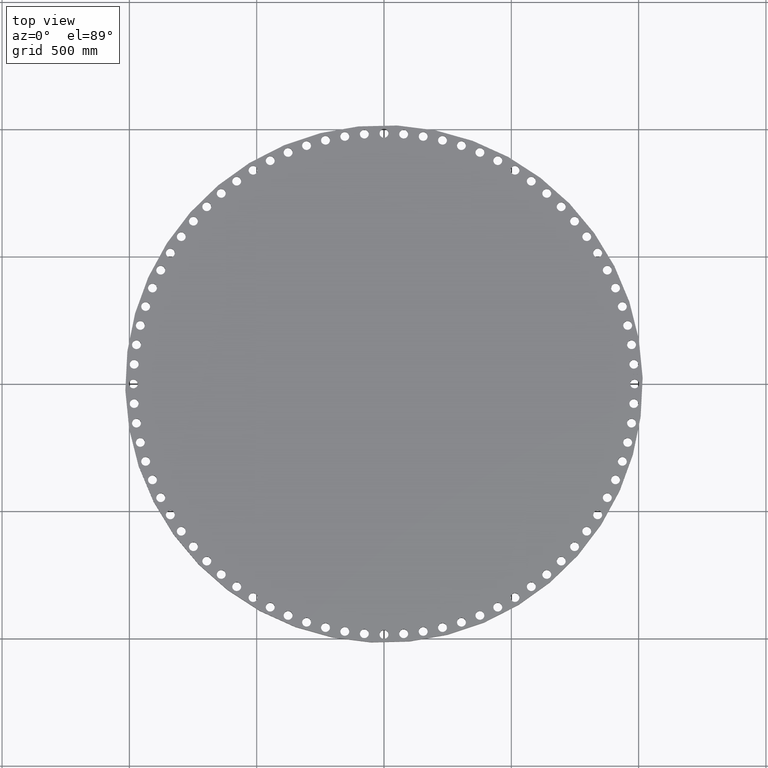
[diagram: clean part render]
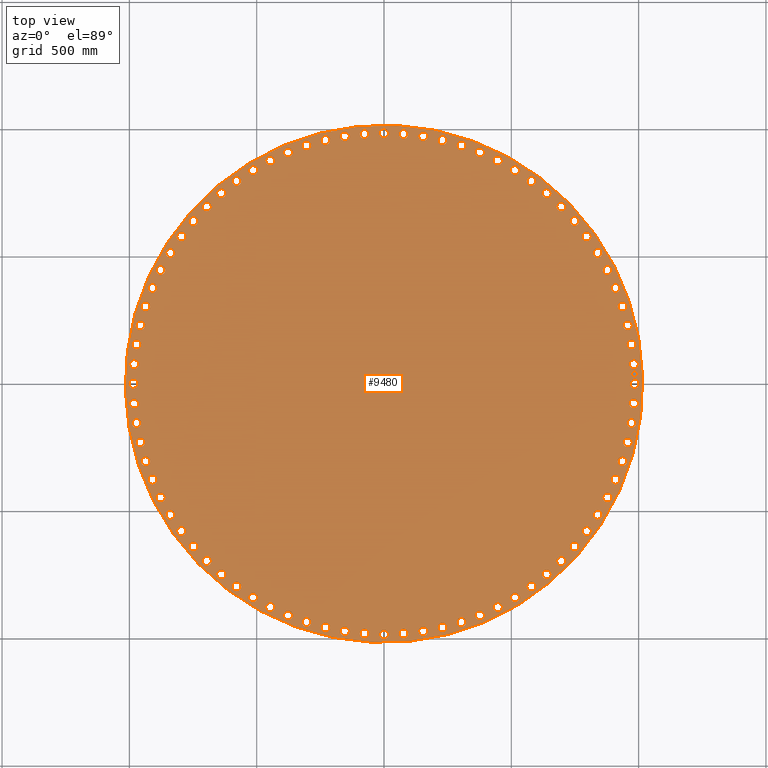
[diagram: same view with one face highlighted and labeled with its STEP entity id]
A machine part, top view. The second image highlights one B-rep face of the part: STEP entity #9480.
In plain terms, the highlighted planar face has unit normal (0, 0, -1).
Its self-contained STEP definition (entity closure, byte-faithful):
#65=AXIS2_PLACEMENT_3D('Circle Axis2P3D',#63,#64,$) ;
#110=AXIS2_PLACEMENT_3D('Circle Axis2P3D',#108,#109,$) ;
#147=AXIS2_PLACEMENT_3D('Circle Axis2P3D',#145,#146,$) ;
#171=AXIS2_PLACEMENT_3D('Circle Axis2P3D',#169,#170,$) ;
#5441=AXIS2_PLACEMENT_3D('Circle Axis2P3D',#5439,#5440,$) ;
#5453=AXIS2_PLACEMENT_3D('Circle Axis2P3D',#5451,#5452,$) ;
#5488=AXIS2_PLACEMENT_3D('Circle Axis2P3D',#5486,#5487,$) ;
#5500=AXIS2_PLACEMENT_3D('Circle Axis2P3D',#5498,#5499,$) ;
#5535=AXIS2_PLACEMENT_3D('Circle Axis2P3D',#5533,#5534,$) ;
#5547=AXIS2_PLACEMENT_3D('Circle Axis2P3D',#5545,#5546,$) ;
#5582=AXIS2_PLACEMENT_3D('Circle Axis2P3D',#5580,#5581,$) ;
#5594=AXIS2_PLACEMENT_3D('Circle Axis2P3D',#5592,#5593,$) ;
#5629=AXIS2_PLACEMENT_3D('Circle Axis2P3D',#5627,#5628,$) ;
#5641=AXIS2_PLACEMENT_3D('Circle Axis2P3D',#5639,#5640,$) ;
#5676=AXIS2_PLACEMENT_3D('Circle Axis2P3D',#5674,#5675,$) ;
#5688=AXIS2_PLACEMENT_3D('Circle Axis2P3D',#5686,#5687,$) ;
#5723=AXIS2_PLACEMENT_3D('Circle Axis2P3D',#5721,#5722,$) ;
#5735=AXIS2_PLACEMENT_3D('Circle Axis2P3D',#5733,#5734,$) ;
#5770=AXIS2_PLACEMENT_3D('Circle Axis2P3D',#5768,#5769,$) ;
#5782=AXIS2_PLACEMENT_3D('Circle Axis2P3D',#5780,#5781,$) ;
#5817=AXIS2_PLACEMENT_3D('Circle Axis2P3D',#5815,#5816,$) ;
#5829=AXIS2_PLACEMENT_3D('Circle Axis2P3D',#5827,#5828,$) ;
#5864=AXIS2_PLACEMENT_3D('Circle Axis2P3D',#5862,#5863,$) ;
#5876=AXIS2_PLACEMENT_3D('Circle Axis2P3D',#5874,#5875,$) ;
#5911=AXIS2_PLACEMENT_3D('Circle Axis2P3D',#5909,#5910,$) ;
#5923=AXIS2_PLACEMENT_3D('Circle Axis2P3D',#5921,#5922,$) ;
#5958=AXIS2_PLACEMENT_3D('Circle Axis2P3D',#5956,#5957,$) ;
#5970=AXIS2_PLACEMENT_3D('Circle Axis2P3D',#5968,#5969,$) ;
#6005=AXIS2_PLACEMENT_3D('Circle Axis2P3D',#6003,#6004,$) ;
#6017=AXIS2_PLACEMENT_3D('Circle Axis2P3D',#6015,#6016,$) ;
#6052=AXIS2_PLACEMENT_3D('Circle Axis2P3D',#6050,#6051,$) ;
#6064=AXIS2_PLACEMENT_3D('Circle Axis2P3D',#6062,#6063,$) ;
#6099=AXIS2_PLACEMENT_3D('Circle Axis2P3D',#6097,#6098,$) ;
#6111=AXIS2_PLACEMENT_3D('Circle Axis2P3D',#6109,#6110,$) ;
#6146=AXIS2_PLACEMENT_3D('Circle Axis2P3D',#6144,#6145,$) ;
#6158=AXIS2_PLACEMENT_3D('Circle Axis2P3D',#6156,#6157,$) ;
#6193=AXIS2_PLACEMENT_3D('Circle Axis2P3D',#6191,#6192,$) ;
#6205=AXIS2_PLACEMENT_3D('Circle Axis2P3D',#6203,#6204,$) ;
#6240=AXIS2_PLACEMENT_3D('Circle Axis2P3D',#6238,#6239,$) ;
#6252=AXIS2_PLACEMENT_3D('Circle Axis2P3D',#6250,#6251,$) ;
#6287=AXIS2_PLACEMENT_3D('Circle Axis2P3D',#6285,#6286,$) ;
#6299=AXIS2_PLACEMENT_3D('Circle Axis2P3D',#6297,#6298,$) ;
#6334=AXIS2_PLACEMENT_3D('Circle Axis2P3D',#6332,#6333,$) ;
#6346=AXIS2_PLACEMENT_3D('Circle Axis2P3D',#6344,#6345,$) ;
#6381=AXIS2_PLACEMENT_3D('Circle Axis2P3D',#6379,#6380,$) ;
#6393=AXIS2_PLACEMENT_3D('Circle Axis2P3D',#6391,#6392,$) ;
#6428=AXIS2_PLACEMENT_3D('Circle Axis2P3D',#6426,#6427,$) ;
#6440=AXIS2_PLACEMENT_3D('Circle Axis2P3D',#6438,#6439,$) ;
#6475=AXIS2_PLACEMENT_3D('Circle Axis2P3D',#6473,#6474,$) ;
#6487=AXIS2_PLACEMENT_3D('Circle Axis2P3D',#6485,#6486,$) ;
#6522=AXIS2_PLACEMENT_3D('Circle Axis2P3D',#6520,#6521,$) ;
#6534=AXIS2_PLACEMENT_3D('Circle Axis2P3D',#6532,#6533,$) ;
#6569=AXIS2_PLACEMENT_3D('Circle Axis2P3D',#6567,#6568,$) ;
#6581=AXIS2_PLACEMENT_3D('Circle Axis2P3D',#6579,#6580,$) ;
#6616=AXIS2_PLACEMENT_3D('Circle Axis2P3D',#6614,#6615,$) ;
#6628=AXIS2_PLACEMENT_3D('Circle Axis2P3D',#6626,#6627,$) ;
#6663=AXIS2_PLACEMENT_3D('Circle Axis2P3D',#6661,#6662,$) ;
#6675=AXIS2_PLACEMENT_3D('Circle Axis2P3D',#6673,#6674,$) ;
#6710=AXIS2_PLACEMENT_3D('Circle Axis2P3D',#6708,#6709,$) ;
#6722=AXIS2_PLACEMENT_3D('Circle Axis2P3D',#6720,#6721,$) ;
#6757=AXIS2_PLACEMENT_3D('Circle Axis2P3D',#6755,#6756,$) ;
#6769=AXIS2_PLACEMENT_3D('Circle Axis2P3D',#6767,#6768,$) ;
#6804=AXIS2_PLACEMENT_3D('Circle Axis2P3D',#6802,#6803,$) ;
#6816=AXIS2_PLACEMENT_3D('Circle Axis2P3D',#6814,#6815,$) ;
#6851=AXIS2_PLACEMENT_3D('Circle Axis2P3D',#6849,#6850,$) ;
#6863=AXIS2_PLACEMENT_3D('Circle Axis2P3D',#6861,#6862,$) ;
#6898=AXIS2_PLACEMENT_3D('Circle Axis2P3D',#6896,#6897,$) ;
#6910=AXIS2_PLACEMENT_3D('Circle Axis2P3D',#6908,#6909,$) ;
#6945=AXIS2_PLACEMENT_3D('Circle Axis2P3D',#6943,#6944,$) ;
#6957=AXIS2_PLACEMENT_3D('Circle Axis2P3D',#6955,#6956,$) ;
#6992=AXIS2_PLACEMENT_3D('Circle Axis2P3D',#6990,#6991,$) ;
#7004=AXIS2_PLACEMENT_3D('Circle Axis2P3D',#7002,#7003,$) ;
#7039=AXIS2_PLACEMENT_3D('Circle Axis2P3D',#7037,#7038,$) ;
#7051=AXIS2_PLACEMENT_3D('Circle Axis2P3D',#7049,#7050,$) ;
#7086=AXIS2_PLACEMENT_3D('Circle Axis2P3D',#7084,#7085,$) ;
#7098=AXIS2_PLACEMENT_3D('Circle Axis2P3D',#7096,#7097,$) ;
#7133=AXIS2_PLACEMENT_3D('Circle Axis2P3D',#7131,#7132,$) ;
#7145=AXIS2_PLACEMENT_3D('Circle Axis2P3D',#7143,#7144,$) ;
#7180=AXIS2_PLACEMENT_3D('Circle Axis2P3D',#7178,#7179,$) ;
#7192=AXIS2_PLACEMENT_3D('Circle Axis2P3D',#7190,#7191,$) ;
#7227=AXIS2_PLACEMENT_3D('Circle Axis2P3D',#7225,#7226,$) ;
#7239=AXIS2_PLACEMENT_3D('Circle Axis2P3D',#7237,#7238,$) ;
#7274=AXIS2_PLACEMENT_3D('Circle Axis2P3D',#7272,#7273,$) ;
#7286=AXIS2_PLACEMENT_3D('Circle Axis2P3D',#7284,#7285,$) ;
#7321=AXIS2_PLACEMENT_3D('Circle Axis2P3D',#7319,#7320,$) ;
#7333=AXIS2_PLACEMENT_3D('Circle Axis2P3D',#7331,#7332,$) ;
#7368=AXIS2_PLACEMENT_3D('Circle Axis2P3D',#7366,#7367,$) ;
#7380=AXIS2_PLACEMENT_3D('Circle Axis2P3D',#7378,#7379,$) ;
#7415=AXIS2_PLACEMENT_3D('Circle Axis2P3D',#7413,#7414,$) ;
#7427=AXIS2_PLACEMENT_3D('Circle Axis2P3D',#7425,#7426,$) ;
#7462=AXIS2_PLACEMENT_3D('Circle Axis2P3D',#7460,#7461,$) ;
#7474=AXIS2_PLACEMENT_3D('Circle Axis2P3D',#7472,#7473,$) ;
#7509=AXIS2_PLACEMENT_3D('Circle Axis2P3D',#7507,#7508,$) ;
#7521=AXIS2_PLACEMENT_3D('Circle Axis2P3D',#7519,#7520,$) ;
#7556=AXIS2_PLACEMENT_3D('Circle Axis2P3D',#7554,#7555,$) ;
#7568=AXIS2_PLACEMENT_3D('Circle Axis2P3D',#7566,#7567,$) ;
#7603=AXIS2_PLACEMENT_3D('Circle Axis2P3D',#7601,#7602,$) ;
#7615=AXIS2_PLACEMENT_3D('Circle Axis2P3D',#7613,#7614,$) ;
#7650=AXIS2_PLACEMENT_3D('Circle Axis2P3D',#7648,#7649,$) ;
#7662=AXIS2_PLACEMENT_3D('Circle Axis2P3D',#7660,#7661,$) ;
#7697=AXIS2_PLACEMENT_3D('Circle Axis2P3D',#7695,#7696,$) ;
#7709=AXIS2_PLACEMENT_3D('Circle Axis2P3D',#7707,#7708,$) ;
#7744=AXIS2_PLACEMENT_3D('Circle Axis2P3D',#7742,#7743,$) ;
#7756=AXIS2_PLACEMENT_3D('Circle Axis2P3D',#7754,#7755,$) ;
#7791=AXIS2_PLACEMENT_3D('Circle Axis2P3D',#7789,#7790,$) ;
#7803=AXIS2_PLACEMENT_3D('Circle Axis2P3D',#7801,#7802,$) ;
#7838=AXIS2_PLACEMENT_3D('Circle Axis2P3D',#7836,#7837,$) ;
#7850=AXIS2_PLACEMENT_3D('Circle Axis2P3D',#7848,#7849,$) ;
#7885=AXIS2_PLACEMENT_3D('Circle Axis2P3D',#7883,#7884,$) ;
#7897=AXIS2_PLACEMENT_3D('Circle Axis2P3D',#7895,#7896,$) ;
#7932=AXIS2_PLACEMENT_3D('Circle Axis2P3D',#7930,#7931,$) ;
#7944=AXIS2_PLACEMENT_3D('Circle Axis2P3D',#7942,#7943,$) ;
#7979=AXIS2_PLACEMENT_3D('Circle Axis2P3D',#7977,#7978,$) ;
#7991=AXIS2_PLACEMENT_3D('Circle Axis2P3D',#7989,#7990,$) ;
#8026=AXIS2_PLACEMENT_3D('Circle Axis2P3D',#8024,#8025,$) ;
#8038=AXIS2_PLACEMENT_3D('Circle Axis2P3D',#8036,#8037,$) ;
#8073=AXIS2_PLACEMENT_3D('Circle Axis2P3D',#8071,#8072,$) ;
#8085=AXIS2_PLACEMENT_3D('Circle Axis2P3D',#8083,#8084,$) ;
#8120=AXIS2_PLACEMENT_3D('Circle Axis2P3D',#8118,#8119,$) ;
#8132=AXIS2_PLACEMENT_3D('Circle Axis2P3D',#8130,#8131,$) ;
#8167=AXIS2_PLACEMENT_3D('Circle Axis2P3D',#8165,#8166,$) ;
#8179=AXIS2_PLACEMENT_3D('Circle Axis2P3D',#8177,#8178,$) ;
#8214=AXIS2_PLACEMENT_3D('Circle Axis2P3D',#8212,#8213,$) ;
#8226=AXIS2_PLACEMENT_3D('Circle Axis2P3D',#8224,#8225,$) ;
#8261=AXIS2_PLACEMENT_3D('Circle Axis2P3D',#8259,#8260,$) ;
#8273=AXIS2_PLACEMENT_3D('Circle Axis2P3D',#8271,#8272,$) ;
#8308=AXIS2_PLACEMENT_3D('Circle Axis2P3D',#8306,#8307,$) ;
#8320=AXIS2_PLACEMENT_3D('Circle Axis2P3D',#8318,#8319,$) ;
#8355=AXIS2_PLACEMENT_3D('Circle Axis2P3D',#8353,#8354,$) ;
#8367=AXIS2_PLACEMENT_3D('Circle Axis2P3D',#8365,#8366,$) ;
#8402=AXIS2_PLACEMENT_3D('Circle Axis2P3D',#8400,#8401,$) ;
#8414=AXIS2_PLACEMENT_3D('Circle Axis2P3D',#8412,#8413,$) ;
#8449=AXIS2_PLACEMENT_3D('Circle Axis2P3D',#8447,#8448,$) ;
#8461=AXIS2_PLACEMENT_3D('Circle Axis2P3D',#8459,#8460,$) ;
#8496=AXIS2_PLACEMENT_3D('Circle Axis2P3D',#8494,#8495,$) ;
#8508=AXIS2_PLACEMENT_3D('Circle Axis2P3D',#8506,#8507,$) ;
#8543=AXIS2_PLACEMENT_3D('Circle Axis2P3D',#8541,#8542,$) ;
#8555=AXIS2_PLACEMENT_3D('Circle Axis2P3D',#8553,#8554,$) ;
#8590=AXIS2_PLACEMENT_3D('Circle Axis2P3D',#8588,#8589,$) ;
#8602=AXIS2_PLACEMENT_3D('Circle Axis2P3D',#8600,#8601,$) ;
#8637=AXIS2_PLACEMENT_3D('Circle Axis2P3D',#8635,#8636,$) ;
#8649=AXIS2_PLACEMENT_3D('Circle Axis2P3D',#8647,#8648,$) ;
#8684=AXIS2_PLACEMENT_3D('Circle Axis2P3D',#8682,#8683,$) ;
#8696=AXIS2_PLACEMENT_3D('Circle Axis2P3D',#8694,#8695,$) ;
#8731=AXIS2_PLACEMENT_3D('Circle Axis2P3D',#8729,#8730,$) ;
#8743=AXIS2_PLACEMENT_3D('Circle Axis2P3D',#8741,#8742,$) ;
#8778=AXIS2_PLACEMENT_3D('Circle Axis2P3D',#8776,#8777,$) ;
#8790=AXIS2_PLACEMENT_3D('Circle Axis2P3D',#8788,#8789,$) ;
#8825=AXIS2_PLACEMENT_3D('Circle Axis2P3D',#8823,#8824,$) ;
#8837=AXIS2_PLACEMENT_3D('Circle Axis2P3D',#8835,#8836,$) ;
#8872=AXIS2_PLACEMENT_3D('Circle Axis2P3D',#8870,#8871,$) ;
#8884=AXIS2_PLACEMENT_3D('Circle Axis2P3D',#8882,#8883,$) ;
#8919=AXIS2_PLACEMENT_3D('Circle Axis2P3D',#8917,#8918,$) ;
#8931=AXIS2_PLACEMENT_3D('Circle Axis2P3D',#8929,#8930,$) ;
#8966=AXIS2_PLACEMENT_3D('Circle Axis2P3D',#8964,#8965,$) ;
#8978=AXIS2_PLACEMENT_3D('Circle Axis2P3D',#8976,#8977,$) ;
#9013=AXIS2_PLACEMENT_3D('Circle Axis2P3D',#9011,#9012,$) ;
#9025=AXIS2_PLACEMENT_3D('Circle Axis2P3D',#9023,#9024,$) ;
#9060=AXIS2_PLACEMENT_3D('Circle Axis2P3D',#9058,#9059,$) ;
#9072=AXIS2_PLACEMENT_3D('Circle Axis2P3D',#9070,#9071,$) ;
#9107=AXIS2_PLACEMENT_3D('Circle Axis2P3D',#9105,#9106,$) ;
#9119=AXIS2_PLACEMENT_3D('Circle Axis2P3D',#9117,#9118,$) ;
#9136=AXIS2_PLACEMENT_3D('Plane Axis2P3D',#9133,#9134,#9135) ;
#9464=AXIS2_PLACEMENT_3D('Circle Axis2P3D',#9462,#9463,$) ;
#9473=AXIS2_PLACEMENT_3D('Circle Axis2P3D',#9471,#9472,$) ;
#46=CARTESIAN_POINT('Vertex',(38.1444680324,0.330803621638,3.13000000001)) ;
#60=CARTESIAN_POINT('Vertex',(39.3555319679,-0.330803621638,3.13000000001)) ;
#63=CARTESIAN_POINT('Axis2P3D Location',(38.7500000002,0.,3.13000000001)) ;
#108=CARTESIAN_POINT('Axis2P3D Location',(38.7500000002,0.,3.13000000001)) ;
#142=CARTESIAN_POINT('Vertex',(-19.1770215442,-35.1033024758,3.13000000001)) ;
#145=CARTESIAN_POINT('Axis2P3D Location',(0.,0.,3.13000000001)) ;
#149=CARTESIAN_POINT('Vertex',(19.1770215442,35.1033024758,3.13000000001)) ;
#169=CARTESIAN_POINT('Axis2P3D Location',(0.,0.,3.13000000001)) ;
#5429=CARTESIAN_POINT('Vertex',(-38.0528359206,2.66299660437,3.13000000001)) ;
#5436=CARTESIAN_POINT('Vertex',(-39.208257444,3.41758331456,3.13000000001)) ;
#5439=CARTESIAN_POINT('Axis2P3D Location',(-38.6305466823,3.04028995947,3.13000000001)) ;
#5451=CARTESIAN_POINT('Axis2P3D Location',(-38.6305466823,3.04028995947,3.13000000001)) ;
#5476=CARTESIAN_POINT('Vertex',(11.4726759234,36.3797688238,3.13000000001)) ;
#5483=CARTESIAN_POINT('Vertex',(12.4761411407,37.3271111894,3.13000000001)) ;
#5486=CARTESIAN_POINT('Axis2P3D Location',(11.9744085321,36.8534400066,3.13000000001)) ;
#5498=CARTESIAN_POINT('Axis2P3D Location',(11.9744085321,36.8534400066,3.13000000001)) ;
#5523=CARTESIAN_POINT('Vertex',(-25.0243953656,28.7904412801,3.13000000001)) ;
#5530=CARTESIAN_POINT('Vertex',(-25.3078283802,30.1410210542,3.13000000001)) ;
#5533=CARTESIAN_POINT('Axis2P3D Location',(-25.1661118729,29.4657311671,3.13000000001)) ;
#5545=CARTESIAN_POINT('Axis2P3D Location',(-25.1661118729,29.4657311671,3.13000000001)) ;
#5570=CARTESIAN_POINT('Vertex',(38.0528359206,-2.66299660437,3.13000000001)) ;
#5577=CARTESIAN_POINT('Vertex',(39.208257444,-3.41758331456,3.13000000001)) ;
#5580=CARTESIAN_POINT('Axis2P3D Location',(38.6305466823,-3.04028995947,3.13000000001)) ;
#5592=CARTESIAN_POINT('Axis2P3D Location',(38.6305466823,-3.04028995947,3.13000000001)) ;
#5617=CARTESIAN_POINT('Vertex',(-27.2061254946,26.7382985264,3.13000000001)) ;
#5624=CARTESIAN_POINT('Vertex',(-27.5946500476,28.0624770158,3.13000000001)) ;
#5627=CARTESIAN_POINT('Axis2P3D Location',(-27.4003877711,27.4003877711,3.13000000001)) ;
#5639=CARTESIAN_POINT('Axis2P3D Location',(-27.4003877711,27.4003877711,3.13000000001)) ;
#5664=CARTESIAN_POINT('Vertex',(37.7265954214,-5.64037857078,3.13000000001)) ;
#5671=CARTESIAN_POINT('Vertex',(38.819250975,-6.48329246988,3.13000000001)) ;
#5674=CARTESIAN_POINT('Axis2P3D Location',(38.2729231982,-6.06183552033,3.13000000001)) ;
#5686=CARTESIAN_POINT('Axis2P3D Location',(38.2729231982,-6.06183552033,3.13000000001)) ;
#5711=CARTESIAN_POINT('Vertex',(2.66299660437,38.0528359206,3.13000000001)) ;
#5718=CARTESIAN_POINT('Vertex',(3.41758331456,39.208257444,3.13000000001)) ;
#5721=CARTESIAN_POINT('Axis2P3D Location',(3.04028995947,38.6305466823,3.13000000001)) ;
#5733=CARTESIAN_POINT('Axis2P3D Location',(3.04028995947,38.6305466823,3.13000000001)) ;
#5758=CARTESIAN_POINT('Vertex',(37.1677579161,-8.58298572769,3.13000000001)) ;
#5765=CARTESIAN_POINT('Vertex',(38.190910915,-9.50902997122,3.13000000001)) ;
#5768=CARTESIAN_POINT('Axis2P3D Location',(37.6793344156,-9.04600784945,3.13000000001)) ;
#5780=CARTESIAN_POINT('Axis2P3D Location',(37.6793344156,-9.04600784945,3.13000000001)) ;
#5805=CARTESIAN_POINT('Vertex',(-35.3674863591,14.2916332571,3.13000000001)) ;
#5812=CARTESIAN_POINT('Vertex',(-36.2331774108,15.3663327513,3.13000000001)) ;
#5815=CARTESIAN_POINT('Axis2P3D Location',(-35.800331885,14.8289830042,3.13000000001)) ;
#5827=CARTESIAN_POINT('Axis2P3D Location',(-35.800331885,14.8289830042,3.13000000001)) ;
#5852=CARTESIAN_POINT('Vertex',(36.3797688238,-11.4726759234,3.13000000001)) ;
#5859=CARTESIAN_POINT('Vertex',(37.3271111894,-12.4761411407,3.13000000001)) ;
#5862=CARTESIAN_POINT('Axis2P3D Location',(36.8534400066,-11.9744085321,3.13000000001)) ;
#5874=CARTESIAN_POINT('Axis2P3D Location',(36.8534400066,-11.9744085321,3.13000000001)) ;
#5899=CARTESIAN_POINT('Vertex',(-36.3797688238,11.4726759234,3.13000000001)) ;
#5906=CARTESIAN_POINT('Vertex',(-37.3271111894,12.4761411407,3.13000000001)) ;
#5909=CARTESIAN_POINT('Axis2P3D Location',(-36.8534400066,11.9744085321,3.13000000001)) ;
#5921=CARTESIAN_POINT('Axis2P3D Location',(-36.8534400066,11.9744085321,3.13000000001)) ;
#5946=CARTESIAN_POINT('Vertex',(35.3674863591,-14.2916332571,3.13000000001)) ;
#5953=CARTESIAN_POINT('Vertex',(36.2331774108,-15.3663327513,3.13000000001)) ;
#5956=CARTESIAN_POINT('Axis2P3D Location',(35.800331885,-14.8289830042,3.13000000001)) ;
#5968=CARTESIAN_POINT('Axis2P3D Location',(35.800331885,-14.8289830042,3.13000000001)) ;
#5993=CARTESIAN_POINT('Vertex',(28.7904412801,25.0243953656,3.13000000001)) ;
#6000=CARTESIAN_POINT('Vertex',(30.1410210542,25.3078283802,3.13000000001)) ;
#6003=CARTESIAN_POINT('Axis2P3D Location',(29.4657311671,25.1661118729,3.13000000001)) ;
#6015=CARTESIAN_POINT('Axis2P3D Location',(29.4657311671,25.1661118729,3.13000000001)) ;
#6040=CARTESIAN_POINT('Vertex',(34.1371515801,-17.0224779192,3.13000000001)) ;
#6047=CARTESIAN_POINT('Vertex',(34.9158540448,-18.1617858107,3.13000000001)) ;
#6050=CARTESIAN_POINT('Axis2P3D Location',(34.5265028124,-17.592131865,3.13000000001)) ;
#6062=CARTESIAN_POINT('Axis2P3D Location',(34.5265028124,-17.592131865,3.13000000001)) ;
#6087=CARTESIAN_POINT('Vertex',(-34.1371515801,17.0224779192,3.13000000001)) ;
#6094=CARTESIAN_POINT('Vertex',(-34.9158540448,18.1617858107,3.13000000001)) ;
#6097=CARTESIAN_POINT('Axis2P3D Location',(-34.5265028124,17.592131865,3.13000000001)) ;
#6109=CARTESIAN_POINT('Axis2P3D Location',(-34.5265028124,17.592131865,3.13000000001)) ;
#6134=CARTESIAN_POINT('Vertex',(32.6963499099,-19.6483733445,3.13000000001)) ;
#6141=CARTESIAN_POINT('Vertex',(33.3832628278,-20.8452654212,3.13000000001)) ;
#6144=CARTESIAN_POINT('Axis2P3D Location',(33.0398063689,-20.2468193828,3.13000000001)) ;
#6156=CARTESIAN_POINT('Axis2P3D Location',(33.0398063689,-20.2468193828,3.13000000001)) ;
#6181=CARTESIAN_POINT('Vertex',(-17.6119742895,33.8367881771,3.13000000001)) ;
#6188=CARTESIAN_POINT('Vertex',(-17.5722894405,35.2162174478,3.13000000001)) ;
#6191=CARTESIAN_POINT('Axis2P3D Location',(-17.592131865,34.5265028124,3.13000000001)) ;
#6203=CARTESIAN_POINT('Axis2P3D Location',(-17.592131865,34.5265028124,3.13000000001)) ;
#6228=CARTESIAN_POINT('Vertex',(31.0539643698,-22.1531300143,3.13000000001)) ;
#6235=CARTESIAN_POINT('Vertex',(31.6448526945,-23.4002270385,3.13000000001)) ;
#6238=CARTESIAN_POINT('Axis2P3D Location',(31.3494085322,-22.7766785264,3.13000000001)) ;
#6250=CARTESIAN_POINT('Axis2P3D Location',(31.3494085322,-22.7766785264,3.13000000001)) ;
#6275=CARTESIAN_POINT('Vertex',(-12.1019018034,36.175320942,3.13000000001)) ;
#6282=CARTESIAN_POINT('Vertex',(-11.8469152608,37.5315590712,3.13000000001)) ;
#6285=CARTESIAN_POINT('Axis2P3D Location',(-11.9744085321,36.8534400066,3.13000000001)) ;
#6297=CARTESIAN_POINT('Axis2P3D Location',(-11.9744085321,36.8534400066,3.13000000001)) ;
#6322=CARTESIAN_POINT('Vertex',(29.220120813,-24.5213052709,3.13000000001)) ;
#6329=CARTESIAN_POINT('Vertex',(29.7113415213,-25.8109184749,3.13000000001)) ;
#6332=CARTESIAN_POINT('Axis2P3D Location',(29.4657311671,-25.1661118729,3.13000000001)) ;
#6344=CARTESIAN_POINT('Axis2P3D Location',(29.4657311671,-25.1661118729,3.13000000001)) ;
#6369=CARTESIAN_POINT('Vertex',(-9.22631271016,37.0133087725,3.13000000001)) ;
#6376=CARTESIAN_POINT('Vertex',(-8.86570298874,38.3453600586,3.13000000001)) ;
#6379=CARTESIAN_POINT('Axis2P3D Location',(-9.04600784945,37.6793344156,3.13000000001)) ;
#6391=CARTESIAN_POINT('Axis2P3D Location',(-9.04600784945,37.6793344156,3.13000000001)) ;
#6416=CARTESIAN_POINT('Vertex',(27.2061254946,-26.7382985264,3.13000000001)) ;
#6423=CARTESIAN_POINT('Vertex',(27.5946500476,-28.0624770158,3.13000000001)) ;
#6426=CARTESIAN_POINT('Axis2P3D Location',(27.4003877711,-27.4003877711,3.13000000001)) ;
#6438=CARTESIAN_POINT('Axis2P3D Location',(27.4003877711,-27.4003877711,3.13000000001)) ;
#6463=CARTESIAN_POINT('Vertex',(14.2916332571,35.3674863591,3.13000000001)) ;
#6470=CARTESIAN_POINT('Vertex',(15.3663327513,36.2331774108,3.13000000001)) ;
#6473=CARTESIAN_POINT('Axis2P3D Location',(14.8289830042,35.800331885,3.13000000001)) ;
#6485=CARTESIAN_POINT('Axis2P3D Location',(14.8289830042,35.800331885,3.13000000001)) ;
#6510=CARTESIAN_POINT('Vertex',(25.0243953656,-28.7904412801,3.13000000001)) ;
#6517=CARTESIAN_POINT('Vertex',(25.3078283802,-30.1410210542,3.13000000001)) ;
#6520=CARTESIAN_POINT('Axis2P3D Location',(25.1661118729,-29.4657311671,3.13000000001)) ;
#6532=CARTESIAN_POINT('Axis2P3D Location',(25.1661118729,-29.4657311671,3.13000000001)) ;
#6557=CARTESIAN_POINT('Vertex',(24.5213052709,29.220120813,3.13000000001)) ;
#6564=CARTESIAN_POINT('Vertex',(25.8109184749,29.7113415213,3.13000000001)) ;
#6567=CARTESIAN_POINT('Axis2P3D Location',(25.1661118729,29.4657311671,3.13000000001)) ;
#6579=CARTESIAN_POINT('Axis2P3D Location',(25.1661118729,29.4657311671,3.13000000001)) ;
#6604=CARTESIAN_POINT('Vertex',(22.6883815177,-30.6650813894,3.13000000001)) ;
#6611=CARTESIAN_POINT('Vertex',(22.8649755351,-32.0337356749,3.13000000001)) ;
#6614=CARTESIAN_POINT('Axis2P3D Location',(22.7766785264,-31.3494085322,3.13000000001)) ;
#6626=CARTESIAN_POINT('Axis2P3D Location',(22.7766785264,-31.3494085322,3.13000000001)) ;
#6651=CARTESIAN_POINT('Vertex',(32.3506610749,20.2124862531,3.13000000001)) ;
#6658=CARTESIAN_POINT('Vertex',(33.7289516628,20.2811525125,3.13000000001)) ;
#6661=CARTESIAN_POINT('Axis2P3D Location',(33.0398063689,20.2468193828,3.13000000001)) ;
#6673=CARTESIAN_POINT('Axis2P3D Location',(33.0398063689,20.2468193828,3.13000000001)) ;
#6698=CARTESIAN_POINT('Vertex',(20.2124862531,-32.3506610749,3.13000000001)) ;
#6705=CARTESIAN_POINT('Vertex',(20.2811525125,-33.7289516628,3.13000000001)) ;
#6708=CARTESIAN_POINT('Axis2P3D Location',(20.2468193828,-33.0398063689,3.13000000001)) ;
#6720=CARTESIAN_POINT('Axis2P3D Location',(20.2468193828,-33.0398063689,3.13000000001)) ;
#6745=CARTESIAN_POINT('Vertex',(37.0133087725,9.22631271016,3.13000000001)) ;
#6752=CARTESIAN_POINT('Vertex',(38.3453600586,8.86570298874,3.13000000001)) ;
#6755=CARTESIAN_POINT('Axis2P3D Location',(37.6793344156,9.04600784945,3.13000000001)) ;
#6767=CARTESIAN_POINT('Axis2P3D Location',(37.6793344156,9.04600784945,3.13000000001)) ;
#6792=CARTESIAN_POINT('Vertex',(17.6119742895,-33.8367881771,3.13000000001)) ;
#6799=CARTESIAN_POINT('Vertex',(17.5722894405,-35.2162174478,3.13000000001)) ;
#6802=CARTESIAN_POINT('Axis2P3D Location',(17.592131865,-34.5265028124,3.13000000001)) ;
#6814=CARTESIAN_POINT('Axis2P3D Location',(17.592131865,-34.5265028124,3.13000000001)) ;
#6839=CARTESIAN_POINT('Vertex',(-38.0009268146,-3.32256433332,3.13000000001)) ;
#6846=CARTESIAN_POINT('Vertex',(-39.2601665501,-2.75801558561,3.13000000001)) ;
#6849=CARTESIAN_POINT('Axis2P3D Location',(-38.6305466823,-3.04028995947,3.13000000001)) ;
#6861=CARTESIAN_POINT('Axis2P3D Location',(-38.6305466823,-3.04028995947,3.13000000001)) ;
#6886=CARTESIAN_POINT('Vertex',(14.9028786477,-35.1143002283,3.13000000001)) ;
#6893=CARTESIAN_POINT('Vertex',(14.7550873607,-36.4863635416,3.13000000001)) ;
#6896=CARTESIAN_POINT('Axis2P3D Location',(14.8289830042,-35.800331885,3.13000000001)) ;
#6908=CARTESIAN_POINT('Axis2P3D Location',(14.8289830042,-35.800331885,3.13000000001)) ;
#6933=CARTESIAN_POINT('Vertex',(-14.9028786477,35.1143002283,3.13000000001)) ;
#6940=CARTESIAN_POINT('Vertex',(-14.7550873607,36.4863635416,3.13000000001)) ;
#6943=CARTESIAN_POINT('Axis2P3D Location',(-14.8289830042,35.800331885,3.13000000001)) ;
#6955=CARTESIAN_POINT('Axis2P3D Location',(-14.8289830042,35.800331885,3.13000000001)) ;
#6980=CARTESIAN_POINT('Vertex',(12.1019018034,-36.175320942,3.13000000001)) ;
#6987=CARTESIAN_POINT('Vertex',(11.8469152608,-37.5315590712,3.13000000001)) ;
#6990=CARTESIAN_POINT('Axis2P3D Location',(11.9744085321,-36.8534400066,3.13000000001)) ;
#7002=CARTESIAN_POINT('Axis2P3D Location',(11.9744085321,-36.8534400066,3.13000000001)) ;
#7027=CARTESIAN_POINT('Vertex',(-37.1677579161,8.58298572769,3.13000000001)) ;
#7034=CARTESIAN_POINT('Vertex',(-38.190910915,9.50902997122,3.13000000001)) ;
#7037=CARTESIAN_POINT('Axis2P3D Location',(-37.6793344156,9.04600784945,3.13000000001)) ;
#7049=CARTESIAN_POINT('Axis2P3D Location',(-37.6793344156,9.04600784945,3.13000000001)) ;
#7074=CARTESIAN_POINT('Vertex',(9.22631271016,-37.0133087725,3.13000000001)) ;
#7081=CARTESIAN_POINT('Vertex',(8.86570298874,-38.3453600586,3.13000000001)) ;
#7084=CARTESIAN_POINT('Axis2P3D Location',(9.04600784945,-37.6793344156,3.13000000001)) ;
#7096=CARTESIAN_POINT('Axis2P3D Location',(9.04600784945,-37.6793344156,3.13000000001)) ;
#7121=CARTESIAN_POINT('Vertex',(-6.29384033102,37.6230972463,3.13000000001)) ;
#7128=CARTESIAN_POINT('Vertex',(-5.82983070965,38.9227491502,3.13000000001)) ;
#7131=CARTESIAN_POINT('Axis2P3D Location',(-6.06183552033,38.2729231982,3.13000000001)) ;
#7143=CARTESIAN_POINT('Axis2P3D Location',(-6.06183552033,38.2729231982,3.13000000001)) ;
#7168=CARTESIAN_POINT('Vertex',(6.29384033102,-37.6230972463,3.13000000001)) ;
#7175=CARTESIAN_POINT('Vertex',(5.82983070965,-38.9227491502,3.13000000001)) ;
#7178=CARTESIAN_POINT('Axis2P3D Location',(6.06183552033,-38.2729231982,3.13000000001)) ;
#7190=CARTESIAN_POINT('Axis2P3D Location',(6.06183552033,-38.2729231982,3.13000000001)) ;
#7215=CARTESIAN_POINT('Vertex',(19.6483733445,32.6963499099,3.13000000001)) ;
#7222=CARTESIAN_POINT('Vertex',(20.8452654212,33.3832628278,3.13000000001)) ;
#7225=CARTESIAN_POINT('Axis2P3D Location',(20.2468193828,33.0398063689,3.13000000001)) ;
#7237=CARTESIAN_POINT('Axis2P3D Location',(20.2468193828,33.0398063689,3.13000000001)) ;
#7262=CARTESIAN_POINT('Vertex',(3.32256433332,-38.0009268146,3.13000000001)) ;
#7269=CARTESIAN_POINT('Vertex',(2.75801558561,-39.2601665501,3.13000000001)) ;
#7272=CARTESIAN_POINT('Axis2P3D Location',(3.04028995947,-38.6305466823,3.13000000001)) ;
#7284=CARTESIAN_POINT('Axis2P3D Location',(3.04028995947,-38.6305466823,3.13000000001)) ;
#7309=CARTESIAN_POINT('Vertex',(33.8367881771,17.6119742895,3.13000000001)) ;
#7316=CARTESIAN_POINT('Vertex',(35.2162174478,17.5722894405,3.13000000001)) ;
#7319=CARTESIAN_POINT('Axis2P3D Location',(34.5265028124,17.592131865,3.13000000001)) ;
#7331=CARTESIAN_POINT('Axis2P3D Location',(34.5265028124,17.592131865,3.13000000001)) ;
#7356=CARTESIAN_POINT('Vertex',(0.330803621638,-38.1444680324,3.13000000001)) ;
#7363=CARTESIAN_POINT('Vertex',(-0.330803621638,-39.3555319679,3.13000000001)) ;
#7366=CARTESIAN_POINT('Axis2P3D Location',(1.09769816142E-014,-38.7500000002,3.13000000001)) ;
#7378=CARTESIAN_POINT('Axis2P3D Location',(1.09769816142E-014,-38.7500000002,3.13000000001)) ;
#7403=CARTESIAN_POINT('Vertex',(26.7382985264,27.2061254946,3.13000000001)) ;
#7410=CARTESIAN_POINT('Vertex',(28.0624770158,27.5946500476,3.13000000001)) ;
#7413=CARTESIAN_POINT('Axis2P3D Location',(27.4003877711,27.4003877711,3.13000000001)) ;
#7425=CARTESIAN_POINT('Axis2P3D Location',(27.4003877711,27.4003877711,3.13000000001)) ;
#7450=CARTESIAN_POINT('Vertex',(-2.66299660437,-38.0528359206,3.13000000001)) ;
#7457=CARTESIAN_POINT('Vertex',(-3.41758331456,-39.208257444,3.13000000001)) ;
#7460=CARTESIAN_POINT('Axis2P3D Location',(-3.04028995947,-38.6305466823,3.13000000001)) ;
#7472=CARTESIAN_POINT('Axis2P3D Location',(-3.04028995947,-38.6305466823,3.13000000001)) ;
#7497=CARTESIAN_POINT('Vertex',(17.0224779192,34.1371515801,3.13000000001)) ;
#7504=CARTESIAN_POINT('Vertex',(18.1617858107,34.9158540448,3.13000000001)) ;
#7507=CARTESIAN_POINT('Axis2P3D Location',(17.592131865,34.5265028124,3.13000000001)) ;
#7519=CARTESIAN_POINT('Axis2P3D Location',(17.592131865,34.5265028124,3.13000000001)) ;
#7544=CARTESIAN_POINT('Vertex',(-5.64037857078,-37.7265954214,3.13000000001)) ;
#7551=CARTESIAN_POINT('Vertex',(-6.48329246988,-38.819250975,3.13000000001)) ;
#7554=CARTESIAN_POINT('Axis2P3D Location',(-6.06183552033,-38.2729231982,3.13000000001)) ;
#7566=CARTESIAN_POINT('Axis2P3D Location',(-6.06183552033,-38.2729231982,3.13000000001)) ;
#7591=CARTESIAN_POINT('Vertex',(5.64037857078,37.7265954214,3.13000000001)) ;
#7598=CARTESIAN_POINT('Vertex',(6.48329246988,38.819250975,3.13000000001)) ;
#7601=CARTESIAN_POINT('Axis2P3D Location',(6.06183552033,38.2729231982,3.13000000001)) ;
#7613=CARTESIAN_POINT('Axis2P3D Location',(6.06183552033,38.2729231982,3.13000000001)) ;
#7638=CARTESIAN_POINT('Vertex',(-8.58298572769,-37.1677579161,3.13000000001)) ;
#7645=CARTESIAN_POINT('Vertex',(-9.50902997122,-38.190910915,3.13000000001)) ;
#7648=CARTESIAN_POINT('Axis2P3D Location',(-9.04600784945,-37.6793344156,3.13000000001)) ;
#7660=CARTESIAN_POINT('Axis2P3D Location',(-9.04600784945,-37.6793344156,3.13000000001)) ;
#7685=CARTESIAN_POINT('Vertex',(-3.32256433332,38.0009268146,3.13000000001)) ;
#7692=CARTESIAN_POINT('Vertex',(-2.75801558561,39.2601665501,3.13000000001)) ;
#7695=CARTESIAN_POINT('Axis2P3D Location',(-3.04028995947,38.6305466823,3.13000000001)) ;
#7707=CARTESIAN_POINT('Axis2P3D Location',(-3.04028995947,38.6305466823,3.13000000001)) ;
#7732=CARTESIAN_POINT('Vertex',(-11.4726759234,-36.3797688238,3.13000000001)) ;
#7739=CARTESIAN_POINT('Vertex',(-12.4761411407,-37.3271111894,3.13000000001)) ;
#7742=CARTESIAN_POINT('Axis2P3D Location',(-11.9744085321,-36.8534400066,3.13000000001)) ;
#7754=CARTESIAN_POINT('Axis2P3D Location',(-11.9744085321,-36.8534400066,3.13000000001)) ;
#7779=CARTESIAN_POINT('Vertex',(36.175320942,12.1019018034,3.13000000001)) ;
#7786=CARTESIAN_POINT('Vertex',(37.5315590712,11.8469152608,3.13000000001)) ;
#7789=CARTESIAN_POINT('Axis2P3D Location',(36.8534400066,11.9744085321,3.13000000001)) ;
#7801=CARTESIAN_POINT('Axis2P3D Location',(36.8534400066,11.9744085321,3.13000000001)) ;
#7826=CARTESIAN_POINT('Vertex',(-14.2916332571,-35.3674863591,3.13000000001)) ;
#7833=CARTESIAN_POINT('Vertex',(-15.3663327513,-36.2331774108,3.13000000001)) ;
#7836=CARTESIAN_POINT('Axis2P3D Location',(-14.8289830042,-35.800331885,3.13000000001)) ;
#7848=CARTESIAN_POINT('Axis2P3D Location',(-14.8289830042,-35.800331885,3.13000000001)) ;
#7873=CARTESIAN_POINT('Vertex',(-22.6883815177,30.6650813894,3.13000000001)) ;
#7880=CARTESIAN_POINT('Vertex',(-22.8649755351,32.0337356749,3.13000000001)) ;
#7883=CARTESIAN_POINT('Axis2P3D Location',(-22.7766785264,31.3494085322,3.13000000001)) ;
#7895=CARTESIAN_POINT('Axis2P3D Location',(-22.7766785264,31.3494085322,3.13000000001)) ;
#7920=CARTESIAN_POINT('Vertex',(-17.0224779192,-34.1371515801,3.13000000001)) ;
#7927=CARTESIAN_POINT('Vertex',(-18.1617858107,-34.9158540448,3.13000000001)) ;
#7930=CARTESIAN_POINT('Axis2P3D Location',(-17.592131865,-34.5265028124,3.13000000001)) ;
#7942=CARTESIAN_POINT('Axis2P3D Location',(-17.592131865,-34.5265028124,3.13000000001)) ;
#7967=CARTESIAN_POINT('Vertex',(-37.7265954214,5.64037857078,3.13000000001)) ;
#7974=CARTESIAN_POINT('Vertex',(-38.819250975,6.48329246988,3.13000000001)) ;
#7977=CARTESIAN_POINT('Axis2P3D Location',(-38.2729231982,6.06183552033,3.13000000001)) ;
#7989=CARTESIAN_POINT('Axis2P3D Location',(-38.2729231982,6.06183552033,3.13000000001)) ;
#8014=CARTESIAN_POINT('Vertex',(-19.6483733445,-32.6963499099,3.13000000001)) ;
#8021=CARTESIAN_POINT('Vertex',(-20.8452654212,-33.3832628278,3.13000000001)) ;
#8024=CARTESIAN_POINT('Axis2P3D Location',(-20.2468193828,-33.0398063689,3.13000000001)) ;
#8036=CARTESIAN_POINT('Axis2P3D Location',(-20.2468193828,-33.0398063689,3.13000000001)) ;
#8061=CARTESIAN_POINT('Vertex',(22.1531300143,31.0539643698,3.13000000001)) ;
#8068=CARTESIAN_POINT('Vertex',(23.4002270385,31.6448526945,3.13000000001)) ;
#8071=CARTESIAN_POINT('Axis2P3D Location',(22.7766785264,31.3494085322,3.13000000001)) ;
#8083=CARTESIAN_POINT('Axis2P3D Location',(22.7766785264,31.3494085322,3.13000000001)) ;
#8108=CARTESIAN_POINT('Vertex',(-22.1531300143,-31.0539643698,3.13000000001)) ;
#8115=CARTESIAN_POINT('Vertex',(-23.4002270385,-31.6448526945,3.13000000001)) ;
#8118=CARTESIAN_POINT('Axis2P3D Location',(-22.7766785264,-31.3494085322,3.13000000001)) ;
#8130=CARTESIAN_POINT('Axis2P3D Location',(-22.7766785264,-31.3494085322,3.13000000001)) ;
#8155=CARTESIAN_POINT('Vertex',(37.6230972463,6.29384033102,3.13000000001)) ;
#8162=CARTESIAN_POINT('Vertex',(38.9227491502,5.82983070965,3.13000000001)) ;
#8165=CARTESIAN_POINT('Axis2P3D Location',(38.2729231982,6.06183552033,3.13000000001)) ;
#8177=CARTESIAN_POINT('Axis2P3D Location',(38.2729231982,6.06183552033,3.13000000001)) ;
#8202=CARTESIAN_POINT('Vertex',(-24.5213052709,-29.220120813,3.13000000001)) ;
#8209=CARTESIAN_POINT('Vertex',(-25.8109184749,-29.7113415213,3.13000000001)) ;
#8212=CARTESIAN_POINT('Axis2P3D Location',(-25.1661118729,-29.4657311671,3.13000000001)) ;
#8224=CARTESIAN_POINT('Axis2P3D Location',(-25.1661118729,-29.4657311671,3.13000000001)) ;
#8249=CARTESIAN_POINT('Vertex',(-0.330803621638,38.1444680324,3.13000000001)) ;
#8256=CARTESIAN_POINT('Vertex',(0.330803621638,39.3555319679,3.13000000001)) ;
#8259=CARTESIAN_POINT('Axis2P3D Location',(-3.70593135308E-014,38.7500000002,3.13000000001)) ;
#8271=CARTESIAN_POINT('Axis2P3D Location',(-3.70593135308E-014,38.7500000002,3.13000000001)) ;
#8296=CARTESIAN_POINT('Vertex',(-26.7382985264,-27.2061254946,3.13000000001)) ;
#8303=CARTESIAN_POINT('Vertex',(-28.0624770158,-27.5946500476,3.13000000001)) ;
#8306=CARTESIAN_POINT('Axis2P3D Location',(-27.4003877711,-27.4003877711,3.13000000001)) ;
#8318=CARTESIAN_POINT('Axis2P3D Location',(-27.4003877711,-27.4003877711,3.13000000001)) ;
#8343=CARTESIAN_POINT('Vertex',(-38.1444680324,-0.330803621638,3.13000000001)) ;
#8350=CARTESIAN_POINT('Vertex',(-39.3555319679,0.330803621638,3.13000000001)) ;
#8353=CARTESIAN_POINT('Axis2P3D Location',(-38.7500000002,-2.19539632285E-014,3.13000000001)) ;
#8365=CARTESIAN_POINT('Axis2P3D Location',(-38.7500000002,-2.19539632285E-014,3.13000000001)) ;
#8390=CARTESIAN_POINT('Vertex',(-28.7904412801,-25.0243953656,3.13000000001)) ;
#8397=CARTESIAN_POINT('Vertex',(-30.1410210542,-25.3078283802,3.13000000001)) ;
#8400=CARTESIAN_POINT('Axis2P3D Location',(-29.4657311671,-25.1661118729,3.13000000001)) ;
#8412=CARTESIAN_POINT('Axis2P3D Location',(-29.4657311671,-25.1661118729,3.13000000001)) ;
#8437=CARTESIAN_POINT('Vertex',(-20.2124862531,32.3506610749,3.13000000001)) ;
#8444=CARTESIAN_POINT('Vertex',(-20.2811525125,33.7289516628,3.13000000001)) ;
#8447=CARTESIAN_POINT('Axis2P3D Location',(-20.2468193828,33.0398063689,3.13000000001)) ;
#8459=CARTESIAN_POINT('Axis2P3D Location',(-20.2468193828,33.0398063689,3.13000000001)) ;
#8484=CARTESIAN_POINT('Vertex',(-30.6650813894,-22.6883815177,3.13000000001)) ;
#8491=CARTESIAN_POINT('Vertex',(-32.0337356749,-22.8649755351,3.13000000001)) ;
#8494=CARTESIAN_POINT('Axis2P3D Location',(-31.3494085322,-22.7766785264,3.13000000001)) ;
#8506=CARTESIAN_POINT('Axis2P3D Location',(-31.3494085322,-22.7766785264,3.13000000001)) ;
#8531=CARTESIAN_POINT('Vertex',(8.58298572769,37.1677579161,3.13000000001)) ;
#8538=CARTESIAN_POINT('Vertex',(9.50902997122,38.190910915,3.13000000001)) ;
#8541=CARTESIAN_POINT('Axis2P3D Location',(9.04600784945,37.6793344156,3.13000000001)) ;
#8553=CARTESIAN_POINT('Axis2P3D Location',(9.04600784945,37.6793344156,3.13000000001)) ;
#8578=CARTESIAN_POINT('Vertex',(-32.3506610749,-20.2124862531,3.13000000001)) ;
#8585=CARTESIAN_POINT('Vertex',(-33.7289516628,-20.2811525125,3.13000000001)) ;
#8588=CARTESIAN_POINT('Axis2P3D Location',(-33.0398063689,-20.2468193828,3.13000000001)) ;
#8600=CARTESIAN_POINT('Axis2P3D Location',(-33.0398063689,-20.2468193828,3.13000000001)) ;
#8625=CARTESIAN_POINT('Vertex',(-31.0539643698,22.1531300143,3.13000000001)) ;
#8632=CARTESIAN_POINT('Vertex',(-31.6448526945,23.4002270385,3.13000000001)) ;
#8635=CARTESIAN_POINT('Axis2P3D Location',(-31.3494085322,22.7766785264,3.13000000001)) ;
#8647=CARTESIAN_POINT('Axis2P3D Location',(-31.3494085322,22.7766785264,3.13000000001)) ;
#8672=CARTESIAN_POINT('Vertex',(-33.8367881771,-17.6119742895,3.13000000001)) ;
#8679=CARTESIAN_POINT('Vertex',(-35.2162174478,-17.5722894405,3.13000000001)) ;
#8682=CARTESIAN_POINT('Axis2P3D Location',(-34.5265028124,-17.592131865,3.13000000001)) ;
#8694=CARTESIAN_POINT('Axis2P3D Location',(-34.5265028124,-17.592131865,3.13000000001)) ;
#8719=CARTESIAN_POINT('Vertex',(-29.220120813,24.5213052709,3.13000000001)) ;
#8726=CARTESIAN_POINT('Vertex',(-29.7113415213,25.8109184749,3.13000000001)) ;
#8729=CARTESIAN_POINT('Axis2P3D Location',(-29.4657311671,25.1661118729,3.13000000001)) ;
#8741=CARTESIAN_POINT('Axis2P3D Location',(-29.4657311671,25.1661118729,3.13000000001)) ;
#8766=CARTESIAN_POINT('Vertex',(-35.1143002283,-14.9028786477,3.13000000001)) ;
#8773=CARTESIAN_POINT('Vertex',(-36.4863635416,-14.7550873607,3.13000000001)) ;
#8776=CARTESIAN_POINT('Axis2P3D Location',(-35.800331885,-14.8289830042,3.13000000001)) ;
#8788=CARTESIAN_POINT('Axis2P3D Location',(-35.800331885,-14.8289830042,3.13000000001)) ;
#8813=CARTESIAN_POINT('Vertex',(-32.6963499099,19.6483733445,3.13000000001)) ;
#8820=CARTESIAN_POINT('Vertex',(-33.3832628278,20.8452654212,3.13000000001)) ;
#8823=CARTESIAN_POINT('Axis2P3D Location',(-33.0398063689,20.2468193828,3.13000000001)) ;
#8835=CARTESIAN_POINT('Axis2P3D Location',(-33.0398063689,20.2468193828,3.13000000001)) ;
#8860=CARTESIAN_POINT('Vertex',(-36.175320942,-12.1019018034,3.13000000001)) ;
#8867=CARTESIAN_POINT('Vertex',(-37.5315590712,-11.8469152608,3.13000000001)) ;
#8870=CARTESIAN_POINT('Axis2P3D Location',(-36.8534400066,-11.9744085321,3.13000000001)) ;
#8882=CARTESIAN_POINT('Axis2P3D Location',(-36.8534400066,-11.9744085321,3.13000000001)) ;
#8907=CARTESIAN_POINT('Vertex',(38.0009268146,3.32256433332,3.13000000001)) ;
#8914=CARTESIAN_POINT('Vertex',(39.2601665501,2.75801558561,3.13000000001)) ;
#8917=CARTESIAN_POINT('Axis2P3D Location',(38.6305466823,3.04028995947,3.13000000001)) ;
#8929=CARTESIAN_POINT('Axis2P3D Location',(38.6305466823,3.04028995947,3.13000000001)) ;
#8954=CARTESIAN_POINT('Vertex',(-37.0133087725,-9.22631271016,3.13000000001)) ;
#8961=CARTESIAN_POINT('Vertex',(-38.3453600586,-8.86570298874,3.13000000001)) ;
#8964=CARTESIAN_POINT('Axis2P3D Location',(-37.6793344156,-9.04600784945,3.13000000001)) ;
#8976=CARTESIAN_POINT('Axis2P3D Location',(-37.6793344156,-9.04600784945,3.13000000001)) ;
#9001=CARTESIAN_POINT('Vertex',(30.6650813894,22.6883815177,3.13000000001)) ;
#9008=CARTESIAN_POINT('Vertex',(32.0337356749,22.8649755351,3.13000000001)) ;
#9011=CARTESIAN_POINT('Axis2P3D Location',(31.3494085322,22.7766785264,3.13000000001)) ;
#9023=CARTESIAN_POINT('Axis2P3D Location',(31.3494085322,22.7766785264,3.13000000001)) ;
#9048=CARTESIAN_POINT('Vertex',(-37.6230972463,-6.29384033102,3.13000000001)) ;
#9055=CARTESIAN_POINT('Vertex',(-38.9227491502,-5.82983070965,3.13000000001)) ;
#9058=CARTESIAN_POINT('Axis2P3D Location',(-38.2729231982,-6.06183552033,3.13000000001)) ;
#9070=CARTESIAN_POINT('Axis2P3D Location',(-38.2729231982,-6.06183552033,3.13000000001)) ;
#9095=CARTESIAN_POINT('Vertex',(35.1143002283,14.9028786477,3.13000000001)) ;
#9102=CARTESIAN_POINT('Vertex',(36.4863635416,14.7550873607,3.13000000001)) ;
#9105=CARTESIAN_POINT('Axis2P3D Location',(35.800331885,14.8289830042,3.13000000001)) ;
#9117=CARTESIAN_POINT('Axis2P3D Location',(35.800331885,14.8289830042,3.13000000001)) ;
#9133=CARTESIAN_POINT('Axis2P3D Location',(0.,40.0000000002,3.13000000001)) ;
#9462=CARTESIAN_POINT('Axis2P3D Location',(38.7201251545,1.52131786067,3.13000000001)) ;
#9466=CARTESIAN_POINT('Vertex',(38.7004952466,2.02093237879,3.13000000001)) ;
#9468=CARTESIAN_POINT('Vertex',(38.7397550624,1.02170334255,3.13000000001)) ;
#9471=CARTESIAN_POINT('Axis2P3D Location',(38.7201251545,1.52131786067,3.13000000001)) ;
#64=DIRECTION('Axis2P3D Direction',(0.,-0.,-0.0393700787402)) ;
#109=DIRECTION('Axis2P3D Direction',(0.,-0.,-0.0393700787402)) ;
#146=DIRECTION('Axis2P3D Direction',(0.,0.,-0.0393700787402)) ;
#170=DIRECTION('Axis2P3D Direction',(0.,0.,-0.0393700787402)) ;
#5440=DIRECTION('Axis2P3D Direction',(0.,0.,-0.0393700787402)) ;
#5452=DIRECTION('Axis2P3D Direction',(0.,0.,-0.0393700787402)) ;
#5487=DIRECTION('Axis2P3D Direction',(0.,0.,-0.0393700787402)) ;
#5499=DIRECTION('Axis2P3D Direction',(0.,0.,-0.0393700787402)) ;
#5534=DIRECTION('Axis2P3D Direction',(0.,0.,-0.0393700787402)) ;
#5546=DIRECTION('Axis2P3D Direction',(0.,0.,-0.0393700787402)) ;
#5581=DIRECTION('Axis2P3D Direction',(0.,-0.,-0.0393700787402)) ;
#5593=DIRECTION('Axis2P3D Direction',(0.,-0.,-0.0393700787402)) ;
#5628=DIRECTION('Axis2P3D Direction',(0.,0.,-0.0393700787402)) ;
#5640=DIRECTION('Axis2P3D Direction',(0.,0.,-0.0393700787402)) ;
#5675=DIRECTION('Axis2P3D Direction',(0.,-0.,-0.0393700787402)) ;
#5687=DIRECTION('Axis2P3D Direction',(0.,-0.,-0.0393700787402)) ;
#5722=DIRECTION('Axis2P3D Direction',(0.,0.,-0.0393700787402)) ;
#5734=DIRECTION('Axis2P3D Direction',(0.,0.,-0.0393700787402)) ;
#5769=DIRECTION('Axis2P3D Direction',(0.,-0.,-0.0393700787402)) ;
#5781=DIRECTION('Axis2P3D Direction',(0.,-0.,-0.0393700787402)) ;
#5816=DIRECTION('Axis2P3D Direction',(0.,0.,-0.0393700787402)) ;
#5828=DIRECTION('Axis2P3D Direction',(0.,0.,-0.0393700787402)) ;
#5863=DIRECTION('Axis2P3D Direction',(0.,-0.,-0.0393700787402)) ;
#5875=DIRECTION('Axis2P3D Direction',(0.,-0.,-0.0393700787402)) ;
#5910=DIRECTION('Axis2P3D Direction',(0.,0.,-0.0393700787402)) ;
#5922=DIRECTION('Axis2P3D Direction',(0.,0.,-0.0393700787402)) ;
#5957=DIRECTION('Axis2P3D Direction',(0.,-0.,-0.0393700787402)) ;
#5969=DIRECTION('Axis2P3D Direction',(0.,-0.,-0.0393700787402)) ;
#6004=DIRECTION('Axis2P3D Direction',(0.,0.,-0.0393700787402)) ;
#6016=DIRECTION('Axis2P3D Direction',(0.,0.,-0.0393700787402)) ;
#6051=DIRECTION('Axis2P3D Direction',(0.,-0.,-0.0393700787402)) ;
#6063=DIRECTION('Axis2P3D Direction',(0.,-0.,-0.0393700787402)) ;
#6098=DIRECTION('Axis2P3D Direction',(0.,0.,-0.0393700787402)) ;
#6110=DIRECTION('Axis2P3D Direction',(0.,0.,-0.0393700787402)) ;
#6145=DIRECTION('Axis2P3D Direction',(0.,-0.,-0.0393700787402)) ;
#6157=DIRECTION('Axis2P3D Direction',(0.,-0.,-0.0393700787402)) ;
#6192=DIRECTION('Axis2P3D Direction',(0.,0.,-0.0393700787402)) ;
#6204=DIRECTION('Axis2P3D Direction',(0.,0.,-0.0393700787402)) ;
#6239=DIRECTION('Axis2P3D Direction',(0.,-0.,-0.0393700787402)) ;
#6251=DIRECTION('Axis2P3D Direction',(0.,-0.,-0.0393700787402)) ;
#6286=DIRECTION('Axis2P3D Direction',(0.,0.,-0.0393700787402)) ;
#6298=DIRECTION('Axis2P3D Direction',(0.,0.,-0.0393700787402)) ;
#6333=DIRECTION('Axis2P3D Direction',(0.,-0.,-0.0393700787402)) ;
#6345=DIRECTION('Axis2P3D Direction',(0.,-0.,-0.0393700787402)) ;
#6380=DIRECTION('Axis2P3D Direction',(0.,0.,-0.0393700787402)) ;
#6392=DIRECTION('Axis2P3D Direction',(0.,0.,-0.0393700787402)) ;
#6427=DIRECTION('Axis2P3D Direction',(0.,-0.,-0.0393700787402)) ;
#6439=DIRECTION('Axis2P3D Direction',(0.,-0.,-0.0393700787402)) ;
#6474=DIRECTION('Axis2P3D Direction',(0.,0.,-0.0393700787402)) ;
#6486=DIRECTION('Axis2P3D Direction',(0.,0.,-0.0393700787402)) ;
#6521=DIRECTION('Axis2P3D Direction',(0.,-0.,-0.0393700787402)) ;
#6533=DIRECTION('Axis2P3D Direction',(0.,-0.,-0.0393700787402)) ;
#6568=DIRECTION('Axis2P3D Direction',(0.,0.,-0.0393700787402)) ;
#6580=DIRECTION('Axis2P3D Direction',(0.,0.,-0.0393700787402)) ;
#6615=DIRECTION('Axis2P3D Direction',(0.,-0.,-0.0393700787402)) ;
#6627=DIRECTION('Axis2P3D Direction',(0.,-0.,-0.0393700787402)) ;
#6662=DIRECTION('Axis2P3D Direction',(0.,0.,-0.0393700787402)) ;
#6674=DIRECTION('Axis2P3D Direction',(0.,0.,-0.0393700787402)) ;
#6709=DIRECTION('Axis2P3D Direction',(0.,-0.,-0.0393700787402)) ;
#6721=DIRECTION('Axis2P3D Direction',(0.,-0.,-0.0393700787402)) ;
#6756=DIRECTION('Axis2P3D Direction',(0.,0.,-0.0393700787402)) ;
#6768=DIRECTION('Axis2P3D Direction',(0.,0.,-0.0393700787402)) ;
#6803=DIRECTION('Axis2P3D Direction',(0.,-0.,-0.0393700787402)) ;
#6815=DIRECTION('Axis2P3D Direction',(0.,-0.,-0.0393700787402)) ;
#6850=DIRECTION('Axis2P3D Direction',(-0.,0.,-0.0393700787402)) ;
#6862=DIRECTION('Axis2P3D Direction',(-0.,0.,-0.0393700787402)) ;
#6897=DIRECTION('Axis2P3D Direction',(0.,-0.,-0.0393700787402)) ;
#6909=DIRECTION('Axis2P3D Direction',(0.,-0.,-0.0393700787402)) ;
#6944=DIRECTION('Axis2P3D Direction',(0.,0.,-0.0393700787402)) ;
#6956=DIRECTION('Axis2P3D Direction',(0.,0.,-0.0393700787402)) ;
#6991=DIRECTION('Axis2P3D Direction',(0.,-0.,-0.0393700787402)) ;
#7003=DIRECTION('Axis2P3D Direction',(0.,-0.,-0.0393700787402)) ;
#7038=DIRECTION('Axis2P3D Direction',(0.,0.,-0.0393700787402)) ;
#7050=DIRECTION('Axis2P3D Direction',(0.,0.,-0.0393700787402)) ;
#7085=DIRECTION('Axis2P3D Direction',(0.,-0.,-0.0393700787402)) ;
#7097=DIRECTION('Axis2P3D Direction',(0.,-0.,-0.0393700787402)) ;
#7132=DIRECTION('Axis2P3D Direction',(0.,0.,-0.0393700787402)) ;
#7144=DIRECTION('Axis2P3D Direction',(0.,0.,-0.0393700787402)) ;
#7179=DIRECTION('Axis2P3D Direction',(0.,-0.,-0.0393700787402)) ;
#7191=DIRECTION('Axis2P3D Direction',(0.,-0.,-0.0393700787402)) ;
#7226=DIRECTION('Axis2P3D Direction',(0.,0.,-0.0393700787402)) ;
#7238=DIRECTION('Axis2P3D Direction',(0.,0.,-0.0393700787402)) ;
#7273=DIRECTION('Axis2P3D Direction',(0.,-0.,-0.0393700787402)) ;
#7285=DIRECTION('Axis2P3D Direction',(0.,-0.,-0.0393700787402)) ;
#7320=DIRECTION('Axis2P3D Direction',(0.,0.,-0.0393700787402)) ;
#7332=DIRECTION('Axis2P3D Direction',(0.,0.,-0.0393700787402)) ;
#7367=DIRECTION('Axis2P3D Direction',(0.,-0.,-0.0393700787402)) ;
#7379=DIRECTION('Axis2P3D Direction',(0.,-0.,-0.0393700787402)) ;
#7414=DIRECTION('Axis2P3D Direction',(0.,0.,-0.0393700787402)) ;
#7426=DIRECTION('Axis2P3D Direction',(0.,0.,-0.0393700787402)) ;
#7461=DIRECTION('Axis2P3D Direction',(-0.,0.,-0.0393700787402)) ;
#7473=DIRECTION('Axis2P3D Direction',(-0.,0.,-0.0393700787402)) ;
#7508=DIRECTION('Axis2P3D Direction',(0.,0.,-0.0393700787402)) ;
#7520=DIRECTION('Axis2P3D Direction',(0.,0.,-0.0393700787402)) ;
#7555=DIRECTION('Axis2P3D Direction',(-0.,0.,-0.0393700787402)) ;
#7567=DIRECTION('Axis2P3D Direction',(-0.,0.,-0.0393700787402)) ;
#7602=DIRECTION('Axis2P3D Direction',(0.,0.,-0.0393700787402)) ;
#7614=DIRECTION('Axis2P3D Direction',(0.,0.,-0.0393700787402)) ;
#7649=DIRECTION('Axis2P3D Direction',(-0.,0.,-0.0393700787402)) ;
#7661=DIRECTION('Axis2P3D Direction',(-0.,0.,-0.0393700787402)) ;
#7696=DIRECTION('Axis2P3D Direction',(0.,0.,-0.0393700787402)) ;
#7708=DIRECTION('Axis2P3D Direction',(0.,0.,-0.0393700787402)) ;
#7743=DIRECTION('Axis2P3D Direction',(-0.,0.,-0.0393700787402)) ;
#7755=DIRECTION('Axis2P3D Direction',(-0.,0.,-0.0393700787402)) ;
#7790=DIRECTION('Axis2P3D Direction',(0.,0.,-0.0393700787402)) ;
#7802=DIRECTION('Axis2P3D Direction',(0.,0.,-0.0393700787402)) ;
#7837=DIRECTION('Axis2P3D Direction',(-0.,0.,-0.0393700787402)) ;
#7849=DIRECTION('Axis2P3D Direction',(-0.,0.,-0.0393700787402)) ;
#7884=DIRECTION('Axis2P3D Direction',(0.,0.,-0.0393700787402)) ;
#7896=DIRECTION('Axis2P3D Direction',(0.,0.,-0.0393700787402)) ;
#7931=DIRECTION('Axis2P3D Direction',(-0.,0.,-0.0393700787402)) ;
#7943=DIRECTION('Axis2P3D Direction',(-0.,0.,-0.0393700787402)) ;
#7978=DIRECTION('Axis2P3D Direction',(0.,0.,-0.0393700787402)) ;
#7990=DIRECTION('Axis2P3D Direction',(0.,0.,-0.0393700787402)) ;
#8025=DIRECTION('Axis2P3D Direction',(-0.,0.,-0.0393700787402)) ;
#8037=DIRECTION('Axis2P3D Direction',(-0.,0.,-0.0393700787402)) ;
#8072=DIRECTION('Axis2P3D Direction',(0.,0.,-0.0393700787402)) ;
#8084=DIRECTION('Axis2P3D Direction',(0.,0.,-0.0393700787402)) ;
#8119=DIRECTION('Axis2P3D Direction',(-0.,0.,-0.0393700787402)) ;
#8131=DIRECTION('Axis2P3D Direction',(-0.,0.,-0.0393700787402)) ;
#8166=DIRECTION('Axis2P3D Direction',(0.,0.,-0.0393700787402)) ;
#8178=DIRECTION('Axis2P3D Direction',(0.,0.,-0.0393700787402)) ;
#8213=DIRECTION('Axis2P3D Direction',(-0.,0.,-0.0393700787402)) ;
#8225=DIRECTION('Axis2P3D Direction',(-0.,0.,-0.0393700787402)) ;
#8260=DIRECTION('Axis2P3D Direction',(0.,0.,-0.0393700787402)) ;
#8272=DIRECTION('Axis2P3D Direction',(0.,0.,-0.0393700787402)) ;
#8307=DIRECTION('Axis2P3D Direction',(-0.,0.,-0.0393700787402)) ;
#8319=DIRECTION('Axis2P3D Direction',(-0.,0.,-0.0393700787402)) ;
#8354=DIRECTION('Axis2P3D Direction',(-0.,0.,-0.0393700787402)) ;
#8366=DIRECTION('Axis2P3D Direction',(-0.,0.,-0.0393700787402)) ;
#8401=DIRECTION('Axis2P3D Direction',(-0.,0.,-0.0393700787402)) ;
#8413=DIRECTION('Axis2P3D Direction',(-0.,0.,-0.0393700787402)) ;
#8448=DIRECTION('Axis2P3D Direction',(0.,0.,-0.0393700787402)) ;
#8460=DIRECTION('Axis2P3D Direction',(0.,0.,-0.0393700787402)) ;
#8495=DIRECTION('Axis2P3D Direction',(-0.,0.,-0.0393700787402)) ;
#8507=DIRECTION('Axis2P3D Direction',(-0.,0.,-0.0393700787402)) ;
#8542=DIRECTION('Axis2P3D Direction',(0.,0.,-0.0393700787402)) ;
#8554=DIRECTION('Axis2P3D Direction',(0.,0.,-0.0393700787402)) ;
#8589=DIRECTION('Axis2P3D Direction',(-0.,0.,-0.0393700787402)) ;
#8601=DIRECTION('Axis2P3D Direction',(-0.,0.,-0.0393700787402)) ;
#8636=DIRECTION('Axis2P3D Direction',(0.,0.,-0.0393700787402)) ;
#8648=DIRECTION('Axis2P3D Direction',(0.,0.,-0.0393700787402)) ;
#8683=DIRECTION('Axis2P3D Direction',(-0.,0.,-0.0393700787402)) ;
#8695=DIRECTION('Axis2P3D Direction',(-0.,0.,-0.0393700787402)) ;
#8730=DIRECTION('Axis2P3D Direction',(0.,0.,-0.0393700787402)) ;
#8742=DIRECTION('Axis2P3D Direction',(0.,0.,-0.0393700787402)) ;
#8777=DIRECTION('Axis2P3D Direction',(-0.,0.,-0.0393700787402)) ;
#8789=DIRECTION('Axis2P3D Direction',(-0.,0.,-0.0393700787402)) ;
#8824=DIRECTION('Axis2P3D Direction',(0.,0.,-0.0393700787402)) ;
#8836=DIRECTION('Axis2P3D Direction',(0.,0.,-0.0393700787402)) ;
#8871=DIRECTION('Axis2P3D Direction',(-0.,0.,-0.0393700787402)) ;
#8883=DIRECTION('Axis2P3D Direction',(-0.,0.,-0.0393700787402)) ;
#8918=DIRECTION('Axis2P3D Direction',(0.,0.,-0.0393700787402)) ;
#8930=DIRECTION('Axis2P3D Direction',(0.,0.,-0.0393700787402)) ;
#8965=DIRECTION('Axis2P3D Direction',(-0.,0.,-0.0393700787402)) ;
#8977=DIRECTION('Axis2P3D Direction',(-0.,0.,-0.0393700787402)) ;
#9012=DIRECTION('Axis2P3D Direction',(0.,0.,-0.0393700787402)) ;
#9024=DIRECTION('Axis2P3D Direction',(0.,0.,-0.0393700787402)) ;
#9059=DIRECTION('Axis2P3D Direction',(-0.,0.,-0.0393700787402)) ;
#9071=DIRECTION('Axis2P3D Direction',(-0.,0.,-0.0393700787402)) ;
#9106=DIRECTION('Axis2P3D Direction',(0.,0.,-0.0393700787402)) ;
#9118=DIRECTION('Axis2P3D Direction',(0.,0.,-0.0393700787402)) ;
#9134=DIRECTION('Axis2P3D Direction',(0.,0.,-0.0393700787402)) ;
#9135=DIRECTION('Axis2P3D XDirection',(0.0393700787402,0.,0.)) ;
#9463=DIRECTION('Axis2P3D Direction',(0.,0.,-0.0393700787402)) ;
#9472=DIRECTION('Axis2P3D Direction',(0.,0.,-0.0393700787402)) ;
#9139=ORIENTED_EDGE('',*,*,#173,.F.) ;
#9140=ORIENTED_EDGE('',*,*,#151,.F.) ;
#9143=ORIENTED_EDGE('',*,*,#67,.T.) ;
#9144=ORIENTED_EDGE('',*,*,#112,.T.) ;
#9147=ORIENTED_EDGE('',*,*,#5596,.T.) ;
#9148=ORIENTED_EDGE('',*,*,#5584,.T.) ;
#9151=ORIENTED_EDGE('',*,*,#5690,.T.) ;
#9152=ORIENTED_EDGE('',*,*,#5678,.T.) ;
#9155=ORIENTED_EDGE('',*,*,#5784,.T.) ;
#9156=ORIENTED_EDGE('',*,*,#5772,.T.) ;
#9159=ORIENTED_EDGE('',*,*,#5878,.T.) ;
#9160=ORIENTED_EDGE('',*,*,#5866,.T.) ;
#9163=ORIENTED_EDGE('',*,*,#5972,.T.) ;
#9164=ORIENTED_EDGE('',*,*,#5960,.T.) ;
#9167=ORIENTED_EDGE('',*,*,#6066,.T.) ;
#9168=ORIENTED_EDGE('',*,*,#6054,.T.) ;
#9171=ORIENTED_EDGE('',*,*,#6160,.T.) ;
#9172=ORIENTED_EDGE('',*,*,#6148,.T.) ;
#9175=ORIENTED_EDGE('',*,*,#6254,.T.) ;
#9176=ORIENTED_EDGE('',*,*,#6242,.T.) ;
#9179=ORIENTED_EDGE('',*,*,#6348,.T.) ;
#9180=ORIENTED_EDGE('',*,*,#6336,.T.) ;
#9183=ORIENTED_EDGE('',*,*,#6442,.T.) ;
#9184=ORIENTED_EDGE('',*,*,#6430,.T.) ;
#9187=ORIENTED_EDGE('',*,*,#6536,.T.) ;
#9188=ORIENTED_EDGE('',*,*,#6524,.T.) ;
#9191=ORIENTED_EDGE('',*,*,#6630,.T.) ;
#9192=ORIENTED_EDGE('',*,*,#6618,.T.) ;
#9195=ORIENTED_EDGE('',*,*,#6724,.T.) ;
#9196=ORIENTED_EDGE('',*,*,#6712,.T.) ;
#9199=ORIENTED_EDGE('',*,*,#6818,.T.) ;
#9200=ORIENTED_EDGE('',*,*,#6806,.T.) ;
#9203=ORIENTED_EDGE('',*,*,#6912,.T.) ;
#9204=ORIENTED_EDGE('',*,*,#6900,.T.) ;
#9207=ORIENTED_EDGE('',*,*,#7006,.T.) ;
#9208=ORIENTED_EDGE('',*,*,#6994,.T.) ;
#9211=ORIENTED_EDGE('',*,*,#7100,.T.) ;
#9212=ORIENTED_EDGE('',*,*,#7088,.T.) ;
#9215=ORIENTED_EDGE('',*,*,#7194,.T.) ;
#9216=ORIENTED_EDGE('',*,*,#7182,.T.) ;
#9219=ORIENTED_EDGE('',*,*,#7288,.T.) ;
#9220=ORIENTED_EDGE('',*,*,#7276,.T.) ;
#9223=ORIENTED_EDGE('',*,*,#7382,.T.) ;
#9224=ORIENTED_EDGE('',*,*,#7370,.T.) ;
#9227=ORIENTED_EDGE('',*,*,#7476,.T.) ;
#9228=ORIENTED_EDGE('',*,*,#7464,.T.) ;
#9231=ORIENTED_EDGE('',*,*,#7570,.T.) ;
#9232=ORIENTED_EDGE('',*,*,#7558,.T.) ;
#9235=ORIENTED_EDGE('',*,*,#7664,.T.) ;
#9236=ORIENTED_EDGE('',*,*,#7652,.T.) ;
#9239=ORIENTED_EDGE('',*,*,#7758,.T.) ;
#9240=ORIENTED_EDGE('',*,*,#7746,.T.) ;
#9243=ORIENTED_EDGE('',*,*,#7852,.T.) ;
#9244=ORIENTED_EDGE('',*,*,#7840,.T.) ;
#9247=ORIENTED_EDGE('',*,*,#7946,.T.) ;
#9248=ORIENTED_EDGE('',*,*,#7934,.T.) ;
#9251=ORIENTED_EDGE('',*,*,#8040,.T.) ;
#9252=ORIENTED_EDGE('',*,*,#8028,.T.) ;
#9255=ORIENTED_EDGE('',*,*,#8134,.T.) ;
#9256=ORIENTED_EDGE('',*,*,#8122,.T.) ;
#9259=ORIENTED_EDGE('',*,*,#8228,.T.) ;
#9260=ORIENTED_EDGE('',*,*,#8216,.T.) ;
#9263=ORIENTED_EDGE('',*,*,#8322,.T.) ;
#9264=ORIENTED_EDGE('',*,*,#8310,.T.) ;
#9267=ORIENTED_EDGE('',*,*,#8416,.T.) ;
#9268=ORIENTED_EDGE('',*,*,#8404,.T.) ;
#9271=ORIENTED_EDGE('',*,*,#8510,.T.) ;
#9272=ORIENTED_EDGE('',*,*,#8498,.T.) ;
#9275=ORIENTED_EDGE('',*,*,#8604,.T.) ;
#9276=ORIENTED_EDGE('',*,*,#8592,.T.) ;
#9279=ORIENTED_EDGE('',*,*,#8698,.T.) ;
#9280=ORIENTED_EDGE('',*,*,#8686,.T.) ;
#9283=ORIENTED_EDGE('',*,*,#8792,.T.) ;
#9284=ORIENTED_EDGE('',*,*,#8780,.T.) ;
#9287=ORIENTED_EDGE('',*,*,#8886,.T.) ;
#9288=ORIENTED_EDGE('',*,*,#8874,.T.) ;
#9291=ORIENTED_EDGE('',*,*,#8980,.T.) ;
#9292=ORIENTED_EDGE('',*,*,#8968,.T.) ;
#9295=ORIENTED_EDGE('',*,*,#9074,.T.) ;
#9296=ORIENTED_EDGE('',*,*,#9062,.T.) ;
#9299=ORIENTED_EDGE('',*,*,#6865,.T.) ;
#9300=ORIENTED_EDGE('',*,*,#6853,.T.) ;
#9303=ORIENTED_EDGE('',*,*,#8369,.T.) ;
#9304=ORIENTED_EDGE('',*,*,#8357,.T.) ;
#9307=ORIENTED_EDGE('',*,*,#5455,.T.) ;
#9308=ORIENTED_EDGE('',*,*,#5443,.T.) ;
#9311=ORIENTED_EDGE('',*,*,#7993,.T.) ;
#9312=ORIENTED_EDGE('',*,*,#7981,.T.) ;
#9315=ORIENTED_EDGE('',*,*,#7053,.T.) ;
#9316=ORIENTED_EDGE('',*,*,#7041,.T.) ;
#9319=ORIENTED_EDGE('',*,*,#5925,.T.) ;
#9320=ORIENTED_EDGE('',*,*,#5913,.T.) ;
#9323=ORIENTED_EDGE('',*,*,#5831,.T.) ;
#9324=ORIENTED_EDGE('',*,*,#5819,.T.) ;
#9327=ORIENTED_EDGE('',*,*,#6113,.T.) ;
#9328=ORIENTED_EDGE('',*,*,#6101,.T.) ;
#9331=ORIENTED_EDGE('',*,*,#8839,.T.) ;
#9332=ORIENTED_EDGE('',*,*,#8827,.T.) ;
#9335=ORIENTED_EDGE('',*,*,#8651,.T.) ;
#9336=ORIENTED_EDGE('',*,*,#8639,.T.) ;
#9339=ORIENTED_EDGE('',*,*,#8745,.T.) ;
#9340=ORIENTED_EDGE('',*,*,#8733,.T.) ;
#9343=ORIENTED_EDGE('',*,*,#5643,.T.) ;
#9344=ORIENTED_EDGE('',*,*,#5631,.T.) ;
#9347=ORIENTED_EDGE('',*,*,#5549,.T.) ;
#9348=ORIENTED_EDGE('',*,*,#5537,.T.) ;
#9351=ORIENTED_EDGE('',*,*,#7899,.T.) ;
#9352=ORIENTED_EDGE('',*,*,#7887,.T.) ;
#9355=ORIENTED_EDGE('',*,*,#8463,.T.) ;
#9356=ORIENTED_EDGE('',*,*,#8451,.T.) ;
#9359=ORIENTED_EDGE('',*,*,#6207,.T.) ;
#9360=ORIENTED_EDGE('',*,*,#6195,.T.) ;
#9363=ORIENTED_EDGE('',*,*,#6959,.T.) ;
#9364=ORIENTED_EDGE('',*,*,#6947,.T.) ;
#9367=ORIENTED_EDGE('',*,*,#6301,.T.) ;
#9368=ORIENTED_EDGE('',*,*,#6289,.T.) ;
#9371=ORIENTED_EDGE('',*,*,#6395,.T.) ;
#9372=ORIENTED_EDGE('',*,*,#6383,.T.) ;
#9375=ORIENTED_EDGE('',*,*,#7147,.T.) ;
#9376=ORIENTED_EDGE('',*,*,#7135,.T.) ;
#9379=ORIENTED_EDGE('',*,*,#7711,.T.) ;
#9380=ORIENTED_EDGE('',*,*,#7699,.T.) ;
#9383=ORIENTED_EDGE('',*,*,#8275,.T.) ;
#9384=ORIENTED_EDGE('',*,*,#8263,.T.) ;
#9387=ORIENTED_EDGE('',*,*,#5737,.T.) ;
#9388=ORIENTED_EDGE('',*,*,#5725,.T.) ;
#9391=ORIENTED_EDGE('',*,*,#7617,.T.) ;
#9392=ORIENTED_EDGE('',*,*,#7605,.T.) ;
#9395=ORIENTED_EDGE('',*,*,#8557,.T.) ;
#9396=ORIENTED_EDGE('',*,*,#8545,.T.) ;
#9399=ORIENTED_EDGE('',*,*,#5502,.T.) ;
#9400=ORIENTED_EDGE('',*,*,#5490,.T.) ;
#9403=ORIENTED_EDGE('',*,*,#6489,.T.) ;
#9404=ORIENTED_EDGE('',*,*,#6477,.T.) ;
#9407=ORIENTED_EDGE('',*,*,#7523,.T.) ;
#9408=ORIENTED_EDGE('',*,*,#7511,.T.) ;
#9411=ORIENTED_EDGE('',*,*,#7241,.T.) ;
#9412=ORIENTED_EDGE('',*,*,#7229,.T.) ;
#9415=ORIENTED_EDGE('',*,*,#8087,.T.) ;
#9416=ORIENTED_EDGE('',*,*,#8075,.T.) ;
#9419=ORIENTED_EDGE('',*,*,#6583,.T.) ;
#9420=ORIENTED_EDGE('',*,*,#6571,.T.) ;
#9423=ORIENTED_EDGE('',*,*,#7429,.T.) ;
#9424=ORIENTED_EDGE('',*,*,#7417,.T.) ;
#9427=ORIENTED_EDGE('',*,*,#6019,.T.) ;
#9428=ORIENTED_EDGE('',*,*,#6007,.T.) ;
#9431=ORIENTED_EDGE('',*,*,#9027,.T.) ;
#9432=ORIENTED_EDGE('',*,*,#9015,.T.) ;
#9435=ORIENTED_EDGE('',*,*,#6677,.T.) ;
#9436=ORIENTED_EDGE('',*,*,#6665,.T.) ;
#9439=ORIENTED_EDGE('',*,*,#7335,.T.) ;
#9440=ORIENTED_EDGE('',*,*,#7323,.T.) ;
#9443=ORIENTED_EDGE('',*,*,#9121,.T.) ;
#9444=ORIENTED_EDGE('',*,*,#9109,.T.) ;
#9447=ORIENTED_EDGE('',*,*,#7805,.T.) ;
#9448=ORIENTED_EDGE('',*,*,#7793,.T.) ;
#9451=ORIENTED_EDGE('',*,*,#6771,.T.) ;
#9452=ORIENTED_EDGE('',*,*,#6759,.T.) ;
#9455=ORIENTED_EDGE('',*,*,#8181,.T.) ;
#9456=ORIENTED_EDGE('',*,*,#8169,.T.) ;
#9459=ORIENTED_EDGE('',*,*,#8933,.T.) ;
#9460=ORIENTED_EDGE('',*,*,#8921,.T.) ;
#9477=ORIENTED_EDGE('',*,*,#9470,.T.) ;
#9478=ORIENTED_EDGE('',*,*,#9475,.T.) ;
#9145=FACE_BOUND('',#9142,.T.) ;
#9149=FACE_BOUND('',#9146,.T.) ;
#9153=FACE_BOUND('',#9150,.T.) ;
#9157=FACE_BOUND('',#9154,.T.) ;
#9161=FACE_BOUND('',#9158,.T.) ;
#9165=FACE_BOUND('',#9162,.T.) ;
#9169=FACE_BOUND('',#9166,.T.) ;
#9173=FACE_BOUND('',#9170,.T.) ;
#9177=FACE_BOUND('',#9174,.T.) ;
#9181=FACE_BOUND('',#9178,.T.) ;
#9185=FACE_BOUND('',#9182,.T.) ;
#9189=FACE_BOUND('',#9186,.T.) ;
#9193=FACE_BOUND('',#9190,.T.) ;
#9197=FACE_BOUND('',#9194,.T.) ;
#9201=FACE_BOUND('',#9198,.T.) ;
#9205=FACE_BOUND('',#9202,.T.) ;
#9209=FACE_BOUND('',#9206,.T.) ;
#9213=FACE_BOUND('',#9210,.T.) ;
#9217=FACE_BOUND('',#9214,.T.) ;
#9221=FACE_BOUND('',#9218,.T.) ;
#9225=FACE_BOUND('',#9222,.T.) ;
#9229=FACE_BOUND('',#9226,.T.) ;
#9233=FACE_BOUND('',#9230,.T.) ;
#9237=FACE_BOUND('',#9234,.T.) ;
#9241=FACE_BOUND('',#9238,.T.) ;
#9245=FACE_BOUND('',#9242,.T.) ;
#9249=FACE_BOUND('',#9246,.T.) ;
#9253=FACE_BOUND('',#9250,.T.) ;
#9257=FACE_BOUND('',#9254,.T.) ;
#9261=FACE_BOUND('',#9258,.T.) ;
#9265=FACE_BOUND('',#9262,.T.) ;
#9269=FACE_BOUND('',#9266,.T.) ;
#9273=FACE_BOUND('',#9270,.T.) ;
#9277=FACE_BOUND('',#9274,.T.) ;
#9281=FACE_BOUND('',#9278,.T.) ;
#9285=FACE_BOUND('',#9282,.T.) ;
#9289=FACE_BOUND('',#9286,.T.) ;
#9293=FACE_BOUND('',#9290,.T.) ;
#9297=FACE_BOUND('',#9294,.T.) ;
#9301=FACE_BOUND('',#9298,.T.) ;
#9305=FACE_BOUND('',#9302,.T.) ;
#9309=FACE_BOUND('',#9306,.T.) ;
#9313=FACE_BOUND('',#9310,.T.) ;
#9317=FACE_BOUND('',#9314,.T.) ;
#9321=FACE_BOUND('',#9318,.T.) ;
#9325=FACE_BOUND('',#9322,.T.) ;
#9329=FACE_BOUND('',#9326,.T.) ;
#9333=FACE_BOUND('',#9330,.T.) ;
#9337=FACE_BOUND('',#9334,.T.) ;
#9341=FACE_BOUND('',#9338,.T.) ;
#9345=FACE_BOUND('',#9342,.T.) ;
#9349=FACE_BOUND('',#9346,.T.) ;
#9353=FACE_BOUND('',#9350,.T.) ;
#9357=FACE_BOUND('',#9354,.T.) ;
#9361=FACE_BOUND('',#9358,.T.) ;
#9365=FACE_BOUND('',#9362,.T.) ;
#9369=FACE_BOUND('',#9366,.T.) ;
#9373=FACE_BOUND('',#9370,.T.) ;
#9377=FACE_BOUND('',#9374,.T.) ;
#9381=FACE_BOUND('',#9378,.T.) ;
#9385=FACE_BOUND('',#9382,.T.) ;
#9389=FACE_BOUND('',#9386,.T.) ;
#9393=FACE_BOUND('',#9390,.T.) ;
#9397=FACE_BOUND('',#9394,.T.) ;
#9401=FACE_BOUND('',#9398,.T.) ;
#9405=FACE_BOUND('',#9402,.T.) ;
#9409=FACE_BOUND('',#9406,.T.) ;
#9413=FACE_BOUND('',#9410,.T.) ;
#9417=FACE_BOUND('',#9414,.T.) ;
#9421=FACE_BOUND('',#9418,.T.) ;
#9425=FACE_BOUND('',#9422,.T.) ;
#9429=FACE_BOUND('',#9426,.T.) ;
#9433=FACE_BOUND('',#9430,.T.) ;
#9437=FACE_BOUND('',#9434,.T.) ;
#9441=FACE_BOUND('',#9438,.T.) ;
#9445=FACE_BOUND('',#9442,.T.) ;
#9449=FACE_BOUND('',#9446,.T.) ;
#9453=FACE_BOUND('',#9450,.T.) ;
#9457=FACE_BOUND('',#9454,.T.) ;
#9461=FACE_BOUND('',#9458,.T.) ;
#9479=FACE_BOUND('',#9476,.T.) ;
#9480=ADVANCED_FACE('PartBody',(#9141,#9145,#9149,#9153,#9157,#9161,#9165,#9169,#9173,#9177,#9181,#9185,#9189,#9193,#9197,#9201,#9205,#9209,#9213,#9217,#9221,#9225,#9229,#9233,#9237,#9241,#9245,#9249,#9253,#9257,#9261,#9265,#9269,#9273,#9277,#9281,#9285,#9289,#9293,#9297,#9301,#9305,#9309,#9313,#9317,#9321,#9325,#9329,#9333,#9337,#9341,#9345,#9349,#9353,#9357,#9361,#9365,#9369,#9373,#9377,#9381,#9385,#9389,#9393,#9397,#9401,#9405,#9409,#9413,#9417,#9421,#9425,#9429,#9433,#9437,#9441,#9445,#9449,#9453,#9457,#9461,#9479),#9137,.F.) ;
#66=CIRCLE('generated circle',#65,0.690000000003) ;
#111=CIRCLE('generated circle',#110,0.690000000003) ;
#148=CIRCLE('generated circle',#147,40.0000000002) ;
#172=CIRCLE('generated circle',#171,40.0000000002) ;
#5442=CIRCLE('generated circle',#5441,0.690000000003) ;
#5454=CIRCLE('generated circle',#5453,0.690000000003) ;
#5489=CIRCLE('generated circle',#5488,0.690000000003) ;
#5501=CIRCLE('generated circle',#5500,0.690000000003) ;
#5536=CIRCLE('generated circle',#5535,0.690000000003) ;
#5548=CIRCLE('generated circle',#5547,0.690000000003) ;
#5583=CIRCLE('generated circle',#5582,0.690000000003) ;
#5595=CIRCLE('generated circle',#5594,0.690000000003) ;
#5630=CIRCLE('generated circle',#5629,0.690000000003) ;
#5642=CIRCLE('generated circle',#5641,0.690000000003) ;
#5677=CIRCLE('generated circle',#5676,0.690000000003) ;
#5689=CIRCLE('generated circle',#5688,0.690000000003) ;
#5724=CIRCLE('generated circle',#5723,0.690000000003) ;
#5736=CIRCLE('generated circle',#5735,0.690000000003) ;
#5771=CIRCLE('generated circle',#5770,0.690000000003) ;
#5783=CIRCLE('generated circle',#5782,0.690000000003) ;
#5818=CIRCLE('generated circle',#5817,0.690000000003) ;
#5830=CIRCLE('generated circle',#5829,0.690000000003) ;
#5865=CIRCLE('generated circle',#5864,0.690000000003) ;
#5877=CIRCLE('generated circle',#5876,0.690000000003) ;
#5912=CIRCLE('generated circle',#5911,0.690000000003) ;
#5924=CIRCLE('generated circle',#5923,0.690000000003) ;
#5959=CIRCLE('generated circle',#5958,0.690000000003) ;
#5971=CIRCLE('generated circle',#5970,0.690000000003) ;
#6006=CIRCLE('generated circle',#6005,0.690000000003) ;
#6018=CIRCLE('generated circle',#6017,0.690000000003) ;
#6053=CIRCLE('generated circle',#6052,0.690000000003) ;
#6065=CIRCLE('generated circle',#6064,0.690000000003) ;
#6100=CIRCLE('generated circle',#6099,0.690000000003) ;
#6112=CIRCLE('generated circle',#6111,0.690000000003) ;
#6147=CIRCLE('generated circle',#6146,0.690000000003) ;
#6159=CIRCLE('generated circle',#6158,0.690000000003) ;
#6194=CIRCLE('generated circle',#6193,0.690000000003) ;
#6206=CIRCLE('generated circle',#6205,0.690000000003) ;
#6241=CIRCLE('generated circle',#6240,0.690000000003) ;
#6253=CIRCLE('generated circle',#6252,0.690000000003) ;
#6288=CIRCLE('generated circle',#6287,0.690000000003) ;
#6300=CIRCLE('generated circle',#6299,0.690000000003) ;
#6335=CIRCLE('generated circle',#6334,0.690000000003) ;
#6347=CIRCLE('generated circle',#6346,0.690000000003) ;
#6382=CIRCLE('generated circle',#6381,0.690000000003) ;
#6394=CIRCLE('generated circle',#6393,0.690000000003) ;
#6429=CIRCLE('generated circle',#6428,0.690000000003) ;
#6441=CIRCLE('generated circle',#6440,0.690000000003) ;
#6476=CIRCLE('generated circle',#6475,0.690000000003) ;
#6488=CIRCLE('generated circle',#6487,0.690000000003) ;
#6523=CIRCLE('generated circle',#6522,0.690000000003) ;
#6535=CIRCLE('generated circle',#6534,0.690000000003) ;
#6570=CIRCLE('generated circle',#6569,0.690000000003) ;
#6582=CIRCLE('generated circle',#6581,0.690000000003) ;
#6617=CIRCLE('generated circle',#6616,0.690000000003) ;
#6629=CIRCLE('generated circle',#6628,0.690000000003) ;
#6664=CIRCLE('generated circle',#6663,0.690000000003) ;
#6676=CIRCLE('generated circle',#6675,0.690000000003) ;
#6711=CIRCLE('generated circle',#6710,0.690000000003) ;
#6723=CIRCLE('generated circle',#6722,0.690000000003) ;
#6758=CIRCLE('generated circle',#6757,0.690000000003) ;
#6770=CIRCLE('generated circle',#6769,0.690000000003) ;
#6805=CIRCLE('generated circle',#6804,0.690000000003) ;
#6817=CIRCLE('generated circle',#6816,0.690000000003) ;
#6852=CIRCLE('generated circle',#6851,0.690000000003) ;
#6864=CIRCLE('generated circle',#6863,0.690000000003) ;
#6899=CIRCLE('generated circle',#6898,0.690000000003) ;
#6911=CIRCLE('generated circle',#6910,0.690000000003) ;
#6946=CIRCLE('generated circle',#6945,0.690000000003) ;
#6958=CIRCLE('generated circle',#6957,0.690000000003) ;
#6993=CIRCLE('generated circle',#6992,0.690000000003) ;
#7005=CIRCLE('generated circle',#7004,0.690000000003) ;
#7040=CIRCLE('generated circle',#7039,0.690000000003) ;
#7052=CIRCLE('generated circle',#7051,0.690000000003) ;
#7087=CIRCLE('generated circle',#7086,0.690000000003) ;
#7099=CIRCLE('generated circle',#7098,0.690000000003) ;
#7134=CIRCLE('generated circle',#7133,0.690000000003) ;
#7146=CIRCLE('generated circle',#7145,0.690000000003) ;
#7181=CIRCLE('generated circle',#7180,0.690000000003) ;
#7193=CIRCLE('generated circle',#7192,0.690000000003) ;
#7228=CIRCLE('generated circle',#7227,0.690000000003) ;
#7240=CIRCLE('generated circle',#7239,0.690000000003) ;
#7275=CIRCLE('generated circle',#7274,0.690000000003) ;
#7287=CIRCLE('generated circle',#7286,0.690000000003) ;
#7322=CIRCLE('generated circle',#7321,0.690000000003) ;
#7334=CIRCLE('generated circle',#7333,0.690000000003) ;
#7369=CIRCLE('generated circle',#7368,0.690000000003) ;
#7381=CIRCLE('generated circle',#7380,0.690000000003) ;
#7416=CIRCLE('generated circle',#7415,0.690000000003) ;
#7428=CIRCLE('generated circle',#7427,0.690000000003) ;
#7463=CIRCLE('generated circle',#7462,0.690000000003) ;
#7475=CIRCLE('generated circle',#7474,0.690000000003) ;
#7510=CIRCLE('generated circle',#7509,0.690000000003) ;
#7522=CIRCLE('generated circle',#7521,0.690000000003) ;
#7557=CIRCLE('generated circle',#7556,0.690000000003) ;
#7569=CIRCLE('generated circle',#7568,0.690000000003) ;
#7604=CIRCLE('generated circle',#7603,0.690000000003) ;
#7616=CIRCLE('generated circle',#7615,0.690000000003) ;
#7651=CIRCLE('generated circle',#7650,0.690000000003) ;
#7663=CIRCLE('generated circle',#7662,0.690000000003) ;
#7698=CIRCLE('generated circle',#7697,0.690000000003) ;
#7710=CIRCLE('generated circle',#7709,0.690000000003) ;
#7745=CIRCLE('generated circle',#7744,0.690000000003) ;
#7757=CIRCLE('generated circle',#7756,0.690000000003) ;
#7792=CIRCLE('generated circle',#7791,0.690000000003) ;
#7804=CIRCLE('generated circle',#7803,0.690000000003) ;
#7839=CIRCLE('generated circle',#7838,0.690000000003) ;
#7851=CIRCLE('generated circle',#7850,0.690000000003) ;
#7886=CIRCLE('generated circle',#7885,0.690000000003) ;
#7898=CIRCLE('generated circle',#7897,0.690000000003) ;
#7933=CIRCLE('generated circle',#7932,0.690000000003) ;
#7945=CIRCLE('generated circle',#7944,0.690000000003) ;
#7980=CIRCLE('generated circle',#7979,0.690000000003) ;
#7992=CIRCLE('generated circle',#7991,0.690000000003) ;
#8027=CIRCLE('generated circle',#8026,0.690000000003) ;
#8039=CIRCLE('generated circle',#8038,0.690000000003) ;
#8074=CIRCLE('generated circle',#8073,0.690000000003) ;
#8086=CIRCLE('generated circle',#8085,0.690000000003) ;
#8121=CIRCLE('generated circle',#8120,0.690000000003) ;
#8133=CIRCLE('generated circle',#8132,0.690000000003) ;
#8168=CIRCLE('generated circle',#8167,0.690000000003) ;
#8180=CIRCLE('generated circle',#8179,0.690000000003) ;
#8215=CIRCLE('generated circle',#8214,0.690000000003) ;
#8227=CIRCLE('generated circle',#8226,0.690000000003) ;
#8262=CIRCLE('generated circle',#8261,0.690000000003) ;
#8274=CIRCLE('generated circle',#8273,0.690000000003) ;
#8309=CIRCLE('generated circle',#8308,0.690000000003) ;
#8321=CIRCLE('generated circle',#8320,0.690000000003) ;
#8356=CIRCLE('generated circle',#8355,0.690000000003) ;
#8368=CIRCLE('generated circle',#8367,0.690000000003) ;
#8403=CIRCLE('generated circle',#8402,0.690000000003) ;
#8415=CIRCLE('generated circle',#8414,0.690000000003) ;
#8450=CIRCLE('generated circle',#8449,0.690000000003) ;
#8462=CIRCLE('generated circle',#8461,0.690000000003) ;
#8497=CIRCLE('generated circle',#8496,0.690000000003) ;
#8509=CIRCLE('generated circle',#8508,0.690000000003) ;
#8544=CIRCLE('generated circle',#8543,0.690000000003) ;
#8556=CIRCLE('generated circle',#8555,0.690000000003) ;
#8591=CIRCLE('generated circle',#8590,0.690000000003) ;
#8603=CIRCLE('generated circle',#8602,0.690000000003) ;
#8638=CIRCLE('generated circle',#8637,0.690000000003) ;
#8650=CIRCLE('generated circle',#8649,0.690000000003) ;
#8685=CIRCLE('generated circle',#8684,0.690000000003) ;
#8697=CIRCLE('generated circle',#8696,0.690000000003) ;
#8732=CIRCLE('generated circle',#8731,0.690000000003) ;
#8744=CIRCLE('generated circle',#8743,0.690000000003) ;
#8779=CIRCLE('generated circle',#8778,0.690000000003) ;
#8791=CIRCLE('generated circle',#8790,0.690000000003) ;
#8826=CIRCLE('generated circle',#8825,0.690000000003) ;
#8838=CIRCLE('generated circle',#8837,0.690000000003) ;
#8873=CIRCLE('generated circle',#8872,0.690000000003) ;
#8885=CIRCLE('generated circle',#8884,0.690000000003) ;
#8920=CIRCLE('generated circle',#8919,0.690000000003) ;
#8932=CIRCLE('generated circle',#8931,0.690000000003) ;
#8967=CIRCLE('generated circle',#8966,0.690000000003) ;
#8979=CIRCLE('generated circle',#8978,0.690000000003) ;
#9014=CIRCLE('generated circle',#9013,0.690000000003) ;
#9026=CIRCLE('generated circle',#9025,0.690000000003) ;
#9061=CIRCLE('generated circle',#9060,0.690000000003) ;
#9073=CIRCLE('generated circle',#9072,0.690000000003) ;
#9108=CIRCLE('generated circle',#9107,0.690000000003) ;
#9120=CIRCLE('generated circle',#9119,0.690000000003) ;
#9465=CIRCLE('generated circle',#9464,0.500000000002) ;
#9474=CIRCLE('generated circle',#9473,0.500000000002) ;
#67=EDGE_CURVE('',#47,#61,#66,.T.) ;
#112=EDGE_CURVE('',#61,#47,#111,.T.) ;
#151=EDGE_CURVE('',#143,#150,#148,.T.) ;
#173=EDGE_CURVE('',#150,#143,#172,.T.) ;
#5443=EDGE_CURVE('',#5430,#5437,#5442,.T.) ;
#5455=EDGE_CURVE('',#5437,#5430,#5454,.T.) ;
#5490=EDGE_CURVE('',#5477,#5484,#5489,.T.) ;
#5502=EDGE_CURVE('',#5484,#5477,#5501,.T.) ;
#5537=EDGE_CURVE('',#5524,#5531,#5536,.T.) ;
#5549=EDGE_CURVE('',#5531,#5524,#5548,.T.) ;
#5584=EDGE_CURVE('',#5571,#5578,#5583,.T.) ;
#5596=EDGE_CURVE('',#5578,#5571,#5595,.T.) ;
#5631=EDGE_CURVE('',#5618,#5625,#5630,.T.) ;
#5643=EDGE_CURVE('',#5625,#5618,#5642,.T.) ;
#5678=EDGE_CURVE('',#5665,#5672,#5677,.T.) ;
#5690=EDGE_CURVE('',#5672,#5665,#5689,.T.) ;
#5725=EDGE_CURVE('',#5712,#5719,#5724,.T.) ;
#5737=EDGE_CURVE('',#5719,#5712,#5736,.T.) ;
#5772=EDGE_CURVE('',#5759,#5766,#5771,.T.) ;
#5784=EDGE_CURVE('',#5766,#5759,#5783,.T.) ;
#5819=EDGE_CURVE('',#5806,#5813,#5818,.T.) ;
#5831=EDGE_CURVE('',#5813,#5806,#5830,.T.) ;
#5866=EDGE_CURVE('',#5853,#5860,#5865,.T.) ;
#5878=EDGE_CURVE('',#5860,#5853,#5877,.T.) ;
#5913=EDGE_CURVE('',#5900,#5907,#5912,.T.) ;
#5925=EDGE_CURVE('',#5907,#5900,#5924,.T.) ;
#5960=EDGE_CURVE('',#5947,#5954,#5959,.T.) ;
#5972=EDGE_CURVE('',#5954,#5947,#5971,.T.) ;
#6007=EDGE_CURVE('',#5994,#6001,#6006,.T.) ;
#6019=EDGE_CURVE('',#6001,#5994,#6018,.T.) ;
#6054=EDGE_CURVE('',#6041,#6048,#6053,.T.) ;
#6066=EDGE_CURVE('',#6048,#6041,#6065,.T.) ;
#6101=EDGE_CURVE('',#6088,#6095,#6100,.T.) ;
#6113=EDGE_CURVE('',#6095,#6088,#6112,.T.) ;
#6148=EDGE_CURVE('',#6135,#6142,#6147,.T.) ;
#6160=EDGE_CURVE('',#6142,#6135,#6159,.T.) ;
#6195=EDGE_CURVE('',#6182,#6189,#6194,.T.) ;
#6207=EDGE_CURVE('',#6189,#6182,#6206,.T.) ;
#6242=EDGE_CURVE('',#6229,#6236,#6241,.T.) ;
#6254=EDGE_CURVE('',#6236,#6229,#6253,.T.) ;
#6289=EDGE_CURVE('',#6276,#6283,#6288,.T.) ;
#6301=EDGE_CURVE('',#6283,#6276,#6300,.T.) ;
#6336=EDGE_CURVE('',#6323,#6330,#6335,.T.) ;
#6348=EDGE_CURVE('',#6330,#6323,#6347,.T.) ;
#6383=EDGE_CURVE('',#6370,#6377,#6382,.T.) ;
#6395=EDGE_CURVE('',#6377,#6370,#6394,.T.) ;
#6430=EDGE_CURVE('',#6417,#6424,#6429,.T.) ;
#6442=EDGE_CURVE('',#6424,#6417,#6441,.T.) ;
#6477=EDGE_CURVE('',#6464,#6471,#6476,.T.) ;
#6489=EDGE_CURVE('',#6471,#6464,#6488,.T.) ;
#6524=EDGE_CURVE('',#6511,#6518,#6523,.T.) ;
#6536=EDGE_CURVE('',#6518,#6511,#6535,.T.) ;
#6571=EDGE_CURVE('',#6558,#6565,#6570,.T.) ;
#6583=EDGE_CURVE('',#6565,#6558,#6582,.T.) ;
#6618=EDGE_CURVE('',#6605,#6612,#6617,.T.) ;
#6630=EDGE_CURVE('',#6612,#6605,#6629,.T.) ;
#6665=EDGE_CURVE('',#6652,#6659,#6664,.T.) ;
#6677=EDGE_CURVE('',#6659,#6652,#6676,.T.) ;
#6712=EDGE_CURVE('',#6699,#6706,#6711,.T.) ;
#6724=EDGE_CURVE('',#6706,#6699,#6723,.T.) ;
#6759=EDGE_CURVE('',#6746,#6753,#6758,.T.) ;
#6771=EDGE_CURVE('',#6753,#6746,#6770,.T.) ;
#6806=EDGE_CURVE('',#6793,#6800,#6805,.T.) ;
#6818=EDGE_CURVE('',#6800,#6793,#6817,.T.) ;
#6853=EDGE_CURVE('',#6840,#6847,#6852,.T.) ;
#6865=EDGE_CURVE('',#6847,#6840,#6864,.T.) ;
#6900=EDGE_CURVE('',#6887,#6894,#6899,.T.) ;
#6912=EDGE_CURVE('',#6894,#6887,#6911,.T.) ;
#6947=EDGE_CURVE('',#6934,#6941,#6946,.T.) ;
#6959=EDGE_CURVE('',#6941,#6934,#6958,.T.) ;
#6994=EDGE_CURVE('',#6981,#6988,#6993,.T.) ;
#7006=EDGE_CURVE('',#6988,#6981,#7005,.T.) ;
#7041=EDGE_CURVE('',#7028,#7035,#7040,.T.) ;
#7053=EDGE_CURVE('',#7035,#7028,#7052,.T.) ;
#7088=EDGE_CURVE('',#7075,#7082,#7087,.T.) ;
#7100=EDGE_CURVE('',#7082,#7075,#7099,.T.) ;
#7135=EDGE_CURVE('',#7122,#7129,#7134,.T.) ;
#7147=EDGE_CURVE('',#7129,#7122,#7146,.T.) ;
#7182=EDGE_CURVE('',#7169,#7176,#7181,.T.) ;
#7194=EDGE_CURVE('',#7176,#7169,#7193,.T.) ;
#7229=EDGE_CURVE('',#7216,#7223,#7228,.T.) ;
#7241=EDGE_CURVE('',#7223,#7216,#7240,.T.) ;
#7276=EDGE_CURVE('',#7263,#7270,#7275,.T.) ;
#7288=EDGE_CURVE('',#7270,#7263,#7287,.T.) ;
#7323=EDGE_CURVE('',#7310,#7317,#7322,.T.) ;
#7335=EDGE_CURVE('',#7317,#7310,#7334,.T.) ;
#7370=EDGE_CURVE('',#7357,#7364,#7369,.T.) ;
#7382=EDGE_CURVE('',#7364,#7357,#7381,.T.) ;
#7417=EDGE_CURVE('',#7404,#7411,#7416,.T.) ;
#7429=EDGE_CURVE('',#7411,#7404,#7428,.T.) ;
#7464=EDGE_CURVE('',#7451,#7458,#7463,.T.) ;
#7476=EDGE_CURVE('',#7458,#7451,#7475,.T.) ;
#7511=EDGE_CURVE('',#7498,#7505,#7510,.T.) ;
#7523=EDGE_CURVE('',#7505,#7498,#7522,.T.) ;
#7558=EDGE_CURVE('',#7545,#7552,#7557,.T.) ;
#7570=EDGE_CURVE('',#7552,#7545,#7569,.T.) ;
#7605=EDGE_CURVE('',#7592,#7599,#7604,.T.) ;
#7617=EDGE_CURVE('',#7599,#7592,#7616,.T.) ;
#7652=EDGE_CURVE('',#7639,#7646,#7651,.T.) ;
#7664=EDGE_CURVE('',#7646,#7639,#7663,.T.) ;
#7699=EDGE_CURVE('',#7686,#7693,#7698,.T.) ;
#7711=EDGE_CURVE('',#7693,#7686,#7710,.T.) ;
#7746=EDGE_CURVE('',#7733,#7740,#7745,.T.) ;
#7758=EDGE_CURVE('',#7740,#7733,#7757,.T.) ;
#7793=EDGE_CURVE('',#7780,#7787,#7792,.T.) ;
#7805=EDGE_CURVE('',#7787,#7780,#7804,.T.) ;
#7840=EDGE_CURVE('',#7827,#7834,#7839,.T.) ;
#7852=EDGE_CURVE('',#7834,#7827,#7851,.T.) ;
#7887=EDGE_CURVE('',#7874,#7881,#7886,.T.) ;
#7899=EDGE_CURVE('',#7881,#7874,#7898,.T.) ;
#7934=EDGE_CURVE('',#7921,#7928,#7933,.T.) ;
#7946=EDGE_CURVE('',#7928,#7921,#7945,.T.) ;
#7981=EDGE_CURVE('',#7968,#7975,#7980,.T.) ;
#7993=EDGE_CURVE('',#7975,#7968,#7992,.T.) ;
#8028=EDGE_CURVE('',#8015,#8022,#8027,.T.) ;
#8040=EDGE_CURVE('',#8022,#8015,#8039,.T.) ;
#8075=EDGE_CURVE('',#8062,#8069,#8074,.T.) ;
#8087=EDGE_CURVE('',#8069,#8062,#8086,.T.) ;
#8122=EDGE_CURVE('',#8109,#8116,#8121,.T.) ;
#8134=EDGE_CURVE('',#8116,#8109,#8133,.T.) ;
#8169=EDGE_CURVE('',#8156,#8163,#8168,.T.) ;
#8181=EDGE_CURVE('',#8163,#8156,#8180,.T.) ;
#8216=EDGE_CURVE('',#8203,#8210,#8215,.T.) ;
#8228=EDGE_CURVE('',#8210,#8203,#8227,.T.) ;
#8263=EDGE_CURVE('',#8250,#8257,#8262,.T.) ;
#8275=EDGE_CURVE('',#8257,#8250,#8274,.T.) ;
#8310=EDGE_CURVE('',#8297,#8304,#8309,.T.) ;
#8322=EDGE_CURVE('',#8304,#8297,#8321,.T.) ;
#8357=EDGE_CURVE('',#8344,#8351,#8356,.T.) ;
#8369=EDGE_CURVE('',#8351,#8344,#8368,.T.) ;
#8404=EDGE_CURVE('',#8391,#8398,#8403,.T.) ;
#8416=EDGE_CURVE('',#8398,#8391,#8415,.T.) ;
#8451=EDGE_CURVE('',#8438,#8445,#8450,.T.) ;
#8463=EDGE_CURVE('',#8445,#8438,#8462,.T.) ;
#8498=EDGE_CURVE('',#8485,#8492,#8497,.T.) ;
#8510=EDGE_CURVE('',#8492,#8485,#8509,.T.) ;
#8545=EDGE_CURVE('',#8532,#8539,#8544,.T.) ;
#8557=EDGE_CURVE('',#8539,#8532,#8556,.T.) ;
#8592=EDGE_CURVE('',#8579,#8586,#8591,.T.) ;
#8604=EDGE_CURVE('',#8586,#8579,#8603,.T.) ;
#8639=EDGE_CURVE('',#8626,#8633,#8638,.T.) ;
#8651=EDGE_CURVE('',#8633,#8626,#8650,.T.) ;
#8686=EDGE_CURVE('',#8673,#8680,#8685,.T.) ;
#8698=EDGE_CURVE('',#8680,#8673,#8697,.T.) ;
#8733=EDGE_CURVE('',#8720,#8727,#8732,.T.) ;
#8745=EDGE_CURVE('',#8727,#8720,#8744,.T.) ;
#8780=EDGE_CURVE('',#8767,#8774,#8779,.T.) ;
#8792=EDGE_CURVE('',#8774,#8767,#8791,.T.) ;
#8827=EDGE_CURVE('',#8814,#8821,#8826,.T.) ;
#8839=EDGE_CURVE('',#8821,#8814,#8838,.T.) ;
#8874=EDGE_CURVE('',#8861,#8868,#8873,.T.) ;
#8886=EDGE_CURVE('',#8868,#8861,#8885,.T.) ;
#8921=EDGE_CURVE('',#8908,#8915,#8920,.T.) ;
#8933=EDGE_CURVE('',#8915,#8908,#8932,.T.) ;
#8968=EDGE_CURVE('',#8955,#8962,#8967,.T.) ;
#8980=EDGE_CURVE('',#8962,#8955,#8979,.T.) ;
#9015=EDGE_CURVE('',#9002,#9009,#9014,.T.) ;
#9027=EDGE_CURVE('',#9009,#9002,#9026,.T.) ;
#9062=EDGE_CURVE('',#9049,#9056,#9061,.T.) ;
#9074=EDGE_CURVE('',#9056,#9049,#9073,.T.) ;
#9109=EDGE_CURVE('',#9096,#9103,#9108,.T.) ;
#9121=EDGE_CURVE('',#9103,#9096,#9120,.T.) ;
#9470=EDGE_CURVE('',#9467,#9469,#9465,.T.) ;
#9475=EDGE_CURVE('',#9469,#9467,#9474,.T.) ;
#9138=EDGE_LOOP('',(#9139,#9140)) ;
#9142=EDGE_LOOP('',(#9143,#9144)) ;
#9146=EDGE_LOOP('',(#9147,#9148)) ;
#9150=EDGE_LOOP('',(#9151,#9152)) ;
#9154=EDGE_LOOP('',(#9155,#9156)) ;
#9158=EDGE_LOOP('',(#9159,#9160)) ;
#9162=EDGE_LOOP('',(#9163,#9164)) ;
#9166=EDGE_LOOP('',(#9167,#9168)) ;
#9170=EDGE_LOOP('',(#9171,#9172)) ;
#9174=EDGE_LOOP('',(#9175,#9176)) ;
#9178=EDGE_LOOP('',(#9179,#9180)) ;
#9182=EDGE_LOOP('',(#9183,#9184)) ;
#9186=EDGE_LOOP('',(#9187,#9188)) ;
#9190=EDGE_LOOP('',(#9191,#9192)) ;
#9194=EDGE_LOOP('',(#9195,#9196)) ;
#9198=EDGE_LOOP('',(#9199,#9200)) ;
#9202=EDGE_LOOP('',(#9203,#9204)) ;
#9206=EDGE_LOOP('',(#9207,#9208)) ;
#9210=EDGE_LOOP('',(#9211,#9212)) ;
#9214=EDGE_LOOP('',(#9215,#9216)) ;
#9218=EDGE_LOOP('',(#9219,#9220)) ;
#9222=EDGE_LOOP('',(#9223,#9224)) ;
#9226=EDGE_LOOP('',(#9227,#9228)) ;
#9230=EDGE_LOOP('',(#9231,#9232)) ;
#9234=EDGE_LOOP('',(#9235,#9236)) ;
#9238=EDGE_LOOP('',(#9239,#9240)) ;
#9242=EDGE_LOOP('',(#9243,#9244)) ;
#9246=EDGE_LOOP('',(#9247,#9248)) ;
#9250=EDGE_LOOP('',(#9251,#9252)) ;
#9254=EDGE_LOOP('',(#9255,#9256)) ;
#9258=EDGE_LOOP('',(#9259,#9260)) ;
#9262=EDGE_LOOP('',(#9263,#9264)) ;
#9266=EDGE_LOOP('',(#9267,#9268)) ;
#9270=EDGE_LOOP('',(#9271,#9272)) ;
#9274=EDGE_LOOP('',(#9275,#9276)) ;
#9278=EDGE_LOOP('',(#9279,#9280)) ;
#9282=EDGE_LOOP('',(#9283,#9284)) ;
#9286=EDGE_LOOP('',(#9287,#9288)) ;
#9290=EDGE_LOOP('',(#9291,#9292)) ;
#9294=EDGE_LOOP('',(#9295,#9296)) ;
#9298=EDGE_LOOP('',(#9299,#9300)) ;
#9302=EDGE_LOOP('',(#9303,#9304)) ;
#9306=EDGE_LOOP('',(#9307,#9308)) ;
#9310=EDGE_LOOP('',(#9311,#9312)) ;
#9314=EDGE_LOOP('',(#9315,#9316)) ;
#9318=EDGE_LOOP('',(#9319,#9320)) ;
#9322=EDGE_LOOP('',(#9323,#9324)) ;
#9326=EDGE_LOOP('',(#9327,#9328)) ;
#9330=EDGE_LOOP('',(#9331,#9332)) ;
#9334=EDGE_LOOP('',(#9335,#9336)) ;
#9338=EDGE_LOOP('',(#9339,#9340)) ;
#9342=EDGE_LOOP('',(#9343,#9344)) ;
#9346=EDGE_LOOP('',(#9347,#9348)) ;
#9350=EDGE_LOOP('',(#9351,#9352)) ;
#9354=EDGE_LOOP('',(#9355,#9356)) ;
#9358=EDGE_LOOP('',(#9359,#9360)) ;
#9362=EDGE_LOOP('',(#9363,#9364)) ;
#9366=EDGE_LOOP('',(#9367,#9368)) ;
#9370=EDGE_LOOP('',(#9371,#9372)) ;
#9374=EDGE_LOOP('',(#9375,#9376)) ;
#9378=EDGE_LOOP('',(#9379,#9380)) ;
#9382=EDGE_LOOP('',(#9383,#9384)) ;
#9386=EDGE_LOOP('',(#9387,#9388)) ;
#9390=EDGE_LOOP('',(#9391,#9392)) ;
#9394=EDGE_LOOP('',(#9395,#9396)) ;
#9398=EDGE_LOOP('',(#9399,#9400)) ;
#9402=EDGE_LOOP('',(#9403,#9404)) ;
#9406=EDGE_LOOP('',(#9407,#9408)) ;
#9410=EDGE_LOOP('',(#9411,#9412)) ;
#9414=EDGE_LOOP('',(#9415,#9416)) ;
#9418=EDGE_LOOP('',(#9419,#9420)) ;
#9422=EDGE_LOOP('',(#9423,#9424)) ;
#9426=EDGE_LOOP('',(#9427,#9428)) ;
#9430=EDGE_LOOP('',(#9431,#9432)) ;
#9434=EDGE_LOOP('',(#9435,#9436)) ;
#9438=EDGE_LOOP('',(#9439,#9440)) ;
#9442=EDGE_LOOP('',(#9443,#9444)) ;
#9446=EDGE_LOOP('',(#9447,#9448)) ;
#9450=EDGE_LOOP('',(#9451,#9452)) ;
#9454=EDGE_LOOP('',(#9455,#9456)) ;
#9458=EDGE_LOOP('',(#9459,#9460)) ;
#9476=EDGE_LOOP('',(#9477,#9478)) ;
#9141=FACE_OUTER_BOUND('',#9138,.T.) ;
#9137=PLANE('',#9136) ;
#47=VERTEX_POINT('',#46) ;
#61=VERTEX_POINT('',#60) ;
#143=VERTEX_POINT('',#142) ;
#150=VERTEX_POINT('',#149) ;
#5430=VERTEX_POINT('',#5429) ;
#5437=VERTEX_POINT('',#5436) ;
#5477=VERTEX_POINT('',#5476) ;
#5484=VERTEX_POINT('',#5483) ;
#5524=VERTEX_POINT('',#5523) ;
#5531=VERTEX_POINT('',#5530) ;
#5571=VERTEX_POINT('',#5570) ;
#5578=VERTEX_POINT('',#5577) ;
#5618=VERTEX_POINT('',#5617) ;
#5625=VERTEX_POINT('',#5624) ;
#5665=VERTEX_POINT('',#5664) ;
#5672=VERTEX_POINT('',#5671) ;
#5712=VERTEX_POINT('',#5711) ;
#5719=VERTEX_POINT('',#5718) ;
#5759=VERTEX_POINT('',#5758) ;
#5766=VERTEX_POINT('',#5765) ;
#5806=VERTEX_POINT('',#5805) ;
#5813=VERTEX_POINT('',#5812) ;
#5853=VERTEX_POINT('',#5852) ;
#5860=VERTEX_POINT('',#5859) ;
#5900=VERTEX_POINT('',#5899) ;
#5907=VERTEX_POINT('',#5906) ;
#5947=VERTEX_POINT('',#5946) ;
#5954=VERTEX_POINT('',#5953) ;
#5994=VERTEX_POINT('',#5993) ;
#6001=VERTEX_POINT('',#6000) ;
#6041=VERTEX_POINT('',#6040) ;
#6048=VERTEX_POINT('',#6047) ;
#6088=VERTEX_POINT('',#6087) ;
#6095=VERTEX_POINT('',#6094) ;
#6135=VERTEX_POINT('',#6134) ;
#6142=VERTEX_POINT('',#6141) ;
#6182=VERTEX_POINT('',#6181) ;
#6189=VERTEX_POINT('',#6188) ;
#6229=VERTEX_POINT('',#6228) ;
#6236=VERTEX_POINT('',#6235) ;
#6276=VERTEX_POINT('',#6275) ;
#6283=VERTEX_POINT('',#6282) ;
#6323=VERTEX_POINT('',#6322) ;
#6330=VERTEX_POINT('',#6329) ;
#6370=VERTEX_POINT('',#6369) ;
#6377=VERTEX_POINT('',#6376) ;
#6417=VERTEX_POINT('',#6416) ;
#6424=VERTEX_POINT('',#6423) ;
#6464=VERTEX_POINT('',#6463) ;
#6471=VERTEX_POINT('',#6470) ;
#6511=VERTEX_POINT('',#6510) ;
#6518=VERTEX_POINT('',#6517) ;
#6558=VERTEX_POINT('',#6557) ;
#6565=VERTEX_POINT('',#6564) ;
#6605=VERTEX_POINT('',#6604) ;
#6612=VERTEX_POINT('',#6611) ;
#6652=VERTEX_POINT('',#6651) ;
#6659=VERTEX_POINT('',#6658) ;
#6699=VERTEX_POINT('',#6698) ;
#6706=VERTEX_POINT('',#6705) ;
#6746=VERTEX_POINT('',#6745) ;
#6753=VERTEX_POINT('',#6752) ;
#6793=VERTEX_POINT('',#6792) ;
#6800=VERTEX_POINT('',#6799) ;
#6840=VERTEX_POINT('',#6839) ;
#6847=VERTEX_POINT('',#6846) ;
#6887=VERTEX_POINT('',#6886) ;
#6894=VERTEX_POINT('',#6893) ;
#6934=VERTEX_POINT('',#6933) ;
#6941=VERTEX_POINT('',#6940) ;
#6981=VERTEX_POINT('',#6980) ;
#6988=VERTEX_POINT('',#6987) ;
#7028=VERTEX_POINT('',#7027) ;
#7035=VERTEX_POINT('',#7034) ;
#7075=VERTEX_POINT('',#7074) ;
#7082=VERTEX_POINT('',#7081) ;
#7122=VERTEX_POINT('',#7121) ;
#7129=VERTEX_POINT('',#7128) ;
#7169=VERTEX_POINT('',#7168) ;
#7176=VERTEX_POINT('',#7175) ;
#7216=VERTEX_POINT('',#7215) ;
#7223=VERTEX_POINT('',#7222) ;
#7263=VERTEX_POINT('',#7262) ;
#7270=VERTEX_POINT('',#7269) ;
#7310=VERTEX_POINT('',#7309) ;
#7317=VERTEX_POINT('',#7316) ;
#7357=VERTEX_POINT('',#7356) ;
#7364=VERTEX_POINT('',#7363) ;
#7404=VERTEX_POINT('',#7403) ;
#7411=VERTEX_POINT('',#7410) ;
#7451=VERTEX_POINT('',#7450) ;
#7458=VERTEX_POINT('',#7457) ;
#7498=VERTEX_POINT('',#7497) ;
#7505=VERTEX_POINT('',#7504) ;
#7545=VERTEX_POINT('',#7544) ;
#7552=VERTEX_POINT('',#7551) ;
#7592=VERTEX_POINT('',#7591) ;
#7599=VERTEX_POINT('',#7598) ;
#7639=VERTEX_POINT('',#7638) ;
#7646=VERTEX_POINT('',#7645) ;
#7686=VERTEX_POINT('',#7685) ;
#7693=VERTEX_POINT('',#7692) ;
#7733=VERTEX_POINT('',#7732) ;
#7740=VERTEX_POINT('',#7739) ;
#7780=VERTEX_POINT('',#7779) ;
#7787=VERTEX_POINT('',#7786) ;
#7827=VERTEX_POINT('',#7826) ;
#7834=VERTEX_POINT('',#7833) ;
#7874=VERTEX_POINT('',#7873) ;
#7881=VERTEX_POINT('',#7880) ;
#7921=VERTEX_POINT('',#7920) ;
#7928=VERTEX_POINT('',#7927) ;
#7968=VERTEX_POINT('',#7967) ;
#7975=VERTEX_POINT('',#7974) ;
#8015=VERTEX_POINT('',#8014) ;
#8022=VERTEX_POINT('',#8021) ;
#8062=VERTEX_POINT('',#8061) ;
#8069=VERTEX_POINT('',#8068) ;
#8109=VERTEX_POINT('',#8108) ;
#8116=VERTEX_POINT('',#8115) ;
#8156=VERTEX_POINT('',#8155) ;
#8163=VERTEX_POINT('',#8162) ;
#8203=VERTEX_POINT('',#8202) ;
#8210=VERTEX_POINT('',#8209) ;
#8250=VERTEX_POINT('',#8249) ;
#8257=VERTEX_POINT('',#8256) ;
#8297=VERTEX_POINT('',#8296) ;
#8304=VERTEX_POINT('',#8303) ;
#8344=VERTEX_POINT('',#8343) ;
#8351=VERTEX_POINT('',#8350) ;
#8391=VERTEX_POINT('',#8390) ;
#8398=VERTEX_POINT('',#8397) ;
#8438=VERTEX_POINT('',#8437) ;
#8445=VERTEX_POINT('',#8444) ;
#8485=VERTEX_POINT('',#8484) ;
#8492=VERTEX_POINT('',#8491) ;
#8532=VERTEX_POINT('',#8531) ;
#8539=VERTEX_POINT('',#8538) ;
#8579=VERTEX_POINT('',#8578) ;
#8586=VERTEX_POINT('',#8585) ;
#8626=VERTEX_POINT('',#8625) ;
#8633=VERTEX_POINT('',#8632) ;
#8673=VERTEX_POINT('',#8672) ;
#8680=VERTEX_POINT('',#8679) ;
#8720=VERTEX_POINT('',#8719) ;
#8727=VERTEX_POINT('',#8726) ;
#8767=VERTEX_POINT('',#8766) ;
#8774=VERTEX_POINT('',#8773) ;
#8814=VERTEX_POINT('',#8813) ;
#8821=VERTEX_POINT('',#8820) ;
#8861=VERTEX_POINT('',#8860) ;
#8868=VERTEX_POINT('',#8867) ;
#8908=VERTEX_POINT('',#8907) ;
#8915=VERTEX_POINT('',#8914) ;
#8955=VERTEX_POINT('',#8954) ;
#8962=VERTEX_POINT('',#8961) ;
#9002=VERTEX_POINT('',#9001) ;
#9009=VERTEX_POINT('',#9008) ;
#9049=VERTEX_POINT('',#9048) ;
#9056=VERTEX_POINT('',#9055) ;
#9096=VERTEX_POINT('',#9095) ;
#9103=VERTEX_POINT('',#9102) ;
#9467=VERTEX_POINT('',#9466) ;
#9469=VERTEX_POINT('',#9468) ;